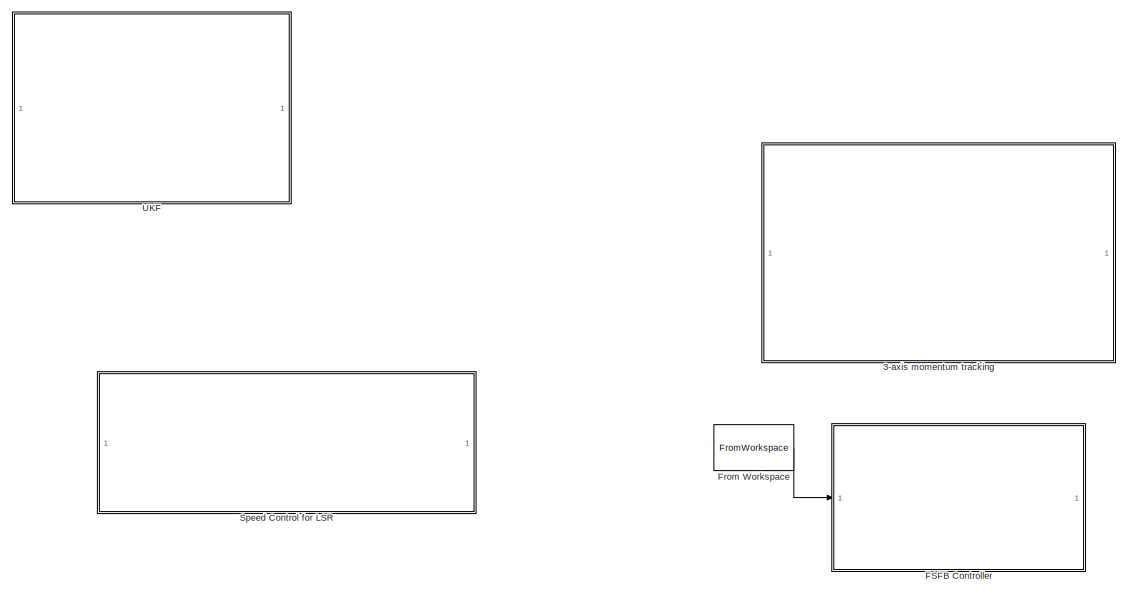
[diagram: root canvas - part 1/3, top right region]
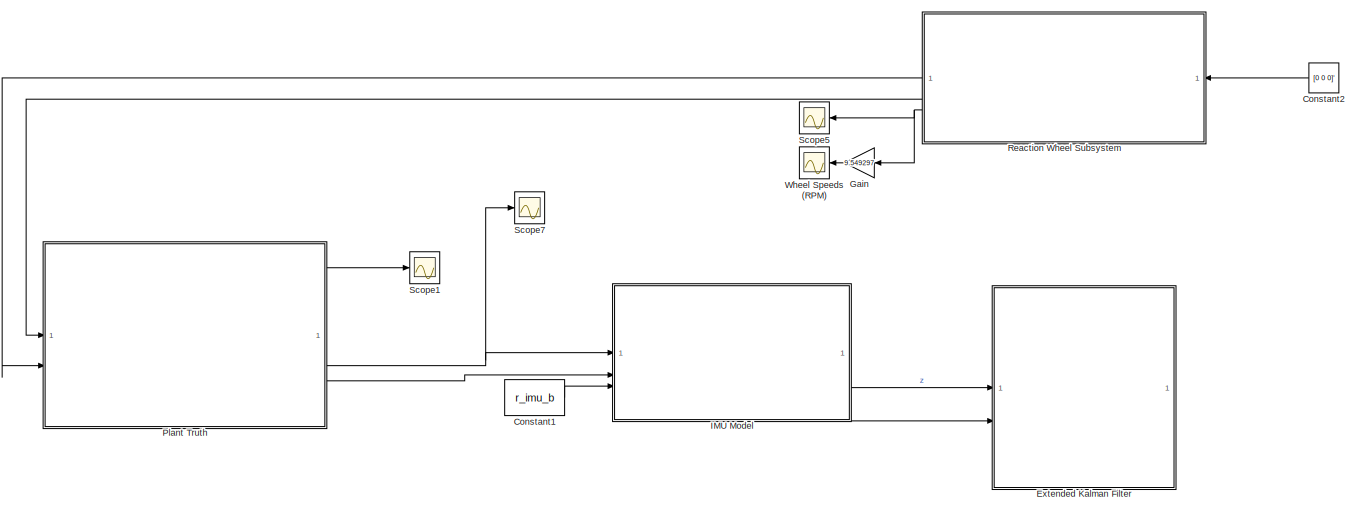
[diagram: root canvas - part 2/3, middle left region]
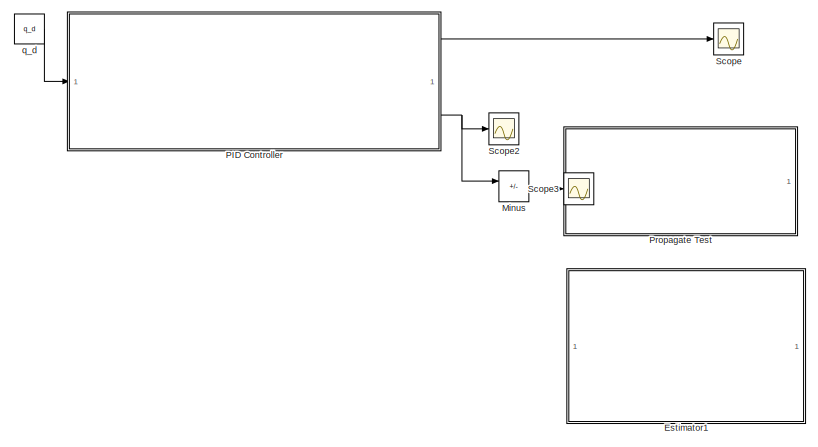
[diagram: root canvas - part 3/3, bottom right region]
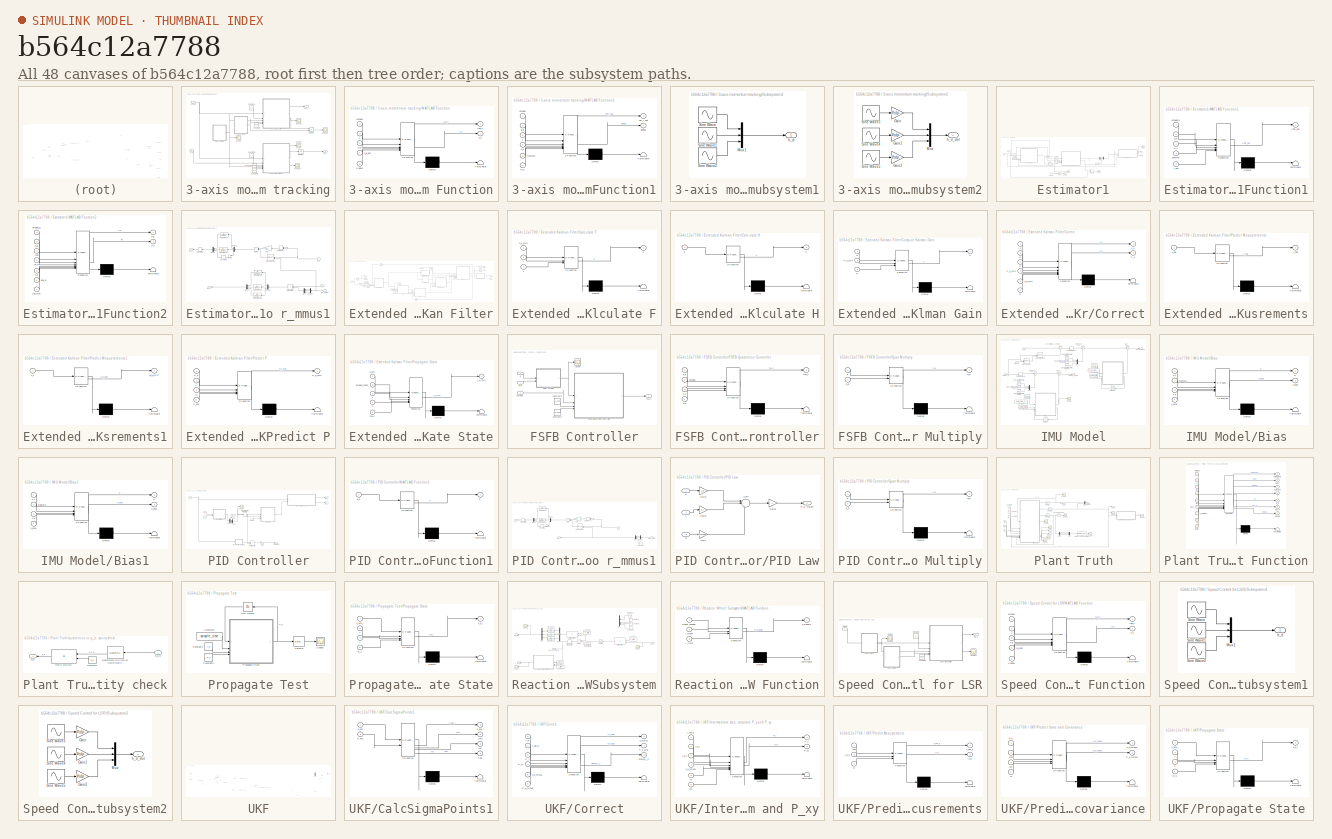
[diagram: thumbnail index - all 48 canvases of the model, root first then tree order]
MODEL slx_b564c12a7788
KIND model
CONFIG AbsTol = auto
CONFIG EnableMultiTasking = off
CONFIG FixedStep = auto
CONFIG InitFcn = rng('shuffle');
CONFIG MaxStep = auto
CONFIG MinStep = auto
CONFIG RelTol = 1e-3
CONFIG SampleTimeConstraint = Unconstrained
CONFIG SolverName = ode15s
CONFIG StartTime = 0.0
CONFIG StopTime = t_sim
BLOCK [SubSystem] 3-axis momentum tracking
  Commented = on
BLOCK [Constant] 3-axis momentum tracking/Constant
  Value = J_0
BLOCK [Constant] 3-axis momentum tracking/Constant2
  Value = J_0
BLOCK [Constant] 3-axis momentum tracking/Constant3
  Value = Kappa
BLOCK [Constant] 3-axis momentum tracking/Constant4
  Value = Gamma
BLOCK [Constant] 3-axis momentum tracking/Constant5
  Value = m_s
BLOCK [Integrator] 3-axis momentum tracking/Integrator
  InitialCondition = [0 0 0]'
BLOCK [SubSystem] 3-axis momentum tracking/MATLAB Function
  ErrorFcn = Stateflow.Translate.translate
  PermitHierarchicalResolution = ExplicitOnly
  SFBlockType = MATLAB Function
  TreatAsAtomicUnit = on
BLOCK [Demux] 3-axis momentum tracking/MATLAB Function/ Demux 
  Outputs = 1
BLOCK [S-Function] 3-axis momentum tracking/MATLAB Function/ SFunction 
  EnableBusSupport = on
  FunctionName = sf_sfun
  PortCounts = [5 3]
  SFcnIsStateOwnerBlock = off
  SFunctionDeploymentMode = off
  Tag = Stateflow S-Function 22
BLOCK [Terminator] 3-axis momentum tracking/MATLAB Function/ Terminator 
BLOCK [Inport] 3-axis momentum tracking/MATLAB Function/J
  Port = 2
BLOCK [Inport] 3-axis momentum tracking/MATLAB Function/Kappa
  Port = 5
BLOCK [Inport] 3-axis momentum tracking/MATLAB Function/h_d
  Port = 3
BLOCK [Inport] 3-axis momentum tracking/MATLAB Function/h_d_dot
  Port = 4
BLOCK [Outport] 3-axis momentum tracking/MATLAB Function/h_s
  Port = 2
BLOCK [Inport] 3-axis momentum tracking/MATLAB Function/omega
BLOCK [Outport] 3-axis momentum tracking/MATLAB Function/tau_c
BLOCK [SubSystem] 3-axis momentum tracking/MATLAB Function1
  ErrorFcn = Stateflow.Translate.translate
  PermitHierarchicalResolution = ExplicitOnly
  SFBlockType = MATLAB Function
  TreatAsAtomicUnit = on
BLOCK [Demux] 3-axis momentum tracking/MATLAB Function1/ Demux 
  Outputs = 1
BLOCK [S-Function] 3-axis momentum tracking/MATLAB Function1/ SFunction 
  EnableBusSupport = on
  FunctionName = sf_sfun
  PortCounts = [6 3]
  SFcnIsStateOwnerBlock = off
  SFunctionDeploymentMode = off
  Tag = Stateflow S-Function 23
BLOCK [Terminator] 3-axis momentum tracking/MATLAB Function1/ Terminator 
BLOCK [Inport] 3-axis momentum tracking/MATLAB Function1/Gamma
  Port = 5
BLOCK [Inport] 3-axis momentum tracking/MATLAB Function1/J
  Port = 3
BLOCK [Outport] 3-axis momentum tracking/MATLAB Function1/debug
  Port = 2
BLOCK [Outport] 3-axis momentum tracking/MATLAB Function1/del_r_dot
BLOCK [Inport] 3-axis momentum tracking/MATLAB Function1/g_b
  Port = 2
BLOCK [Inport] 3-axis momentum tracking/MATLAB Function1/h_d
  Port = 4
BLOCK [Inport] 3-axis momentum tracking/MATLAB Function1/m_s
  Port = 6
BLOCK [Inport] 3-axis momentum tracking/MATLAB Function1/omega
BLOCK [Scope] 3-axis momentum tracking/Scope
  Floating = off
  NumInputPorts = 1
  ScopeSpecificationString = Simulink.scopes.TimeScopeBlockCfg('CurrentConfiguration', extmgr.ConfigurationSet(extmgr.Configuration('Core','General UI',true),extmgr.Configuration('Core','Source UI',true),extmgr.Configuration('Sources','WiredSimulink',true,'DataLoggingVariableName','ScopeData1'),extmgr.Configuration('Visuals','Time Domain',true,'SerializedDisplays',{struct('MinYLimReal','-0.022','MaxYLimReal','0.022','YLabelRe...<+1533ch>
BLOCK [Scope] 3-axis momentum tracking/Scope1
  Floating = off
  NumInputPorts = 1
  ScopeSpecificationString = Simulink.scopes.TimeScopeBlockCfg('CurrentConfiguration', extmgr.ConfigurationSet(extmgr.Configuration('Core','General UI',true),extmgr.Configuration('Core','Source UI',true),extmgr.Configuration('Sources','WiredSimulink',true,'DataLoggingVariableName','ScopeData2'),extmgr.Configuration('Visuals','Time Domain',true,'SerializedDisplays',{struct('MinYLimReal','-0.094','MaxYLimReal','0.09878','YLabel...<+1632ch>
BLOCK [Scope] 3-axis momentum tracking/Scope10
  Floating = off
  NumInputPorts = 1
  ScopeSpecificationString = Simulink.scopes.TimeScopeBlockCfg('CurrentConfiguration', extmgr.ConfigurationSet(extmgr.Configuration('Core','General UI',true),extmgr.Configuration('Core','Source UI',true),extmgr.Configuration('Sources','WiredSimulink',true,'DataLoggingVariableName','ScopeData6'),extmgr.Configuration('Visuals','Time Domain',true,'SerializedDisplays',{struct('MinYLimReal','-2.31687','MaxYLimReal','3.20503','YLab...<+1594ch>
BLOCK [Scope] 3-axis momentum tracking/Scope4
  Floating = off
  NumInputPorts = 1
  ScopeSpecificationString = Simulink.scopes.TimeScopeBlockCfg('CurrentConfiguration', extmgr.ConfigurationSet(extmgr.Configuration('Core','General UI',true),extmgr.Configuration('Core','Source UI',true),extmgr.Configuration('Sources','WiredSimulink',true,'DataLoggingVariableName','ScopeData5'),extmgr.Configuration('Visuals','Time Domain',true,'SerializedDisplays',{struct('MinYLimReal','-0.02298','MaxYLimReal','0.02294','YLab...<+1598ch>
BLOCK [Scope] 3-axis momentum tracking/Scope9
  Floating = off
  NumInputPorts = 1
  ScopeSpecificationString = Simulink.scopes.TimeScopeBlockCfg('CurrentConfiguration', extmgr.ConfigurationSet(extmgr.Configuration('Core','General UI',true),extmgr.Configuration('Core','Source UI',true),extmgr.Configuration('Sources','WiredSimulink',true,'DataLoggingVariableName','ScopeData3'),extmgr.Configuration('Visuals','Time Domain',true,'SerializedDisplays',{struct('MinYLimReal','-0.00149','MaxYLimReal','0.00277','YLab...<+1652ch>
BLOCK [SubSystem] 3-axis momentum tracking/Subsystem1
BLOCK [Mux] 3-axis momentum tracking/Subsystem1/Mux1
  DisplayOption = bar
  Inputs = 3
BLOCK [Sin] 3-axis momentum tracking/Subsystem1/Sine Wave
  Amplitude = h_d_amp(1)
  Frequency = 1/h_d_period(1)
  Phase = h_d_phase(1)
  SampleTime = 0
BLOCK [Sin] 3-axis momentum tracking/Subsystem1/Sine Wave1
  Amplitude = h_d_amp(2)
  Frequency = 1/h_d_period(2)
  Phase = h_d_phase(2)
  SampleTime = 0
BLOCK [Sin] 3-axis momentum tracking/Subsystem1/Sine Wave2
  Amplitude = h_d_amp(3)
  Frequency = 1/h_d_period(3)
  Phase = h_d_phase(3)
  SampleTime = 0
BLOCK [Outport] 3-axis momentum tracking/Subsystem1/h_d
BLOCK [SubSystem] 3-axis momentum tracking/Subsystem2
BLOCK [Gain] 3-axis momentum tracking/Subsystem2/Gain
  Gain = 1/h_d_period(1)
BLOCK [Gain] 3-axis momentum tracking/Subsystem2/Gain1
  Gain = 1/h_d_period(2)
BLOCK [Gain] 3-axis momentum tracking/Subsystem2/Gain2
  Gain = 1/h_d_period(3)
BLOCK [Mux] 3-axis momentum tracking/Subsystem2/Mux
  DisplayOption = bar
  Inputs = 3
BLOCK [Sin] 3-axis momentum tracking/Subsystem2/Sine Wave3
  Amplitude = h_d_amp(1)
  Frequency = 1/h_d_period(1)
  Phase = h_d_phase(1)-(pi/2)
  SampleTime = 0
BLOCK [Sin] 3-axis momentum tracking/Subsystem2/Sine Wave4
  Amplitude = h_d_amp(2)
  Frequency = 1/h_d_period(2)
  Phase = h_d_phase(2)-(pi/2)
  SampleTime = 0
BLOCK [Sin] 3-axis momentum tracking/Subsystem2/Sine Wave5
  Amplitude = h_d_amp(3)
  Frequency = 1/h_d_period(3)
  Phase = h_d_phase(3)-(pi/2)
  SampleTime = 0
BLOCK [Outport] 3-axis momentum tracking/Subsystem2/h_d_dot
BLOCK [Sum] 3-axis momentum tracking/Subtract
  IconShape = rectangular
  Inputs = +-
BLOCK [Outport] 3-axis momentum tracking/del_r
  Port = 2
BLOCK [Inport] 3-axis momentum tracking/g_b
  Port = 2
BLOCK [Inport] 3-axis momentum tracking/omega
BLOCK [Outport] 3-axis momentum tracking/tau_c
BLOCK [Constant] Constant1
  Value = r_imu_b
BLOCK [Constant] Constant2
  NameLocation = top
  Value = [0 0 0]'
BLOCK [SubSystem] Estimator1
  Commented = on
BLOCK [Constant] Estimator1/Constant
  Value = m_s
BLOCK [Constant] Estimator1/Constant1
  Value = m_s
BLOCK [Constant] Estimator1/Constant2
  Value = k_p
BLOCK [Constant] Estimator1/Constant3
  Value = 0
BLOCK [Constant] Estimator1/Constant4
  Value = gamma
BLOCK [Constant] Estimator1/Constant5
  Value = r_0
BLOCK [Demux] Estimator1/Demux
  Outputs = 3
BLOCK [Integrator] Estimator1/Integrator
  InitialCondition = r_hat_0
BLOCK [SubSystem] Estimator1/MATLAB Function1
  ErrorFcn = Stateflow.Translate.translate
  PermitHierarchicalResolution = ExplicitOnly
  SFBlockType = MATLAB Function
  TreatAsAtomicUnit = on
BLOCK [Demux] Estimator1/MATLAB Function1/ Demux 
  Outputs = 1
BLOCK [S-Function] Estimator1/MATLAB Function1/ SFunction 
  EnableBusSupport = on
  FunctionName = sf_sfun
  PortCounts = [5 2]
  SFcnIsStateOwnerBlock = off
  SFunctionDeploymentMode = off
  Tag = Stateflow S-Function 27
BLOCK [Terminator] Estimator1/MATLAB Function1/ Terminator 
BLOCK [Inport] Estimator1/MATLAB Function1/g_b
  Port = 2
BLOCK [Inport] Estimator1/MATLAB Function1/gamma
  Port = 4
BLOCK [Inport] Estimator1/MATLAB Function1/m_s
  Port = 3
BLOCK [Inport] Estimator1/MATLAB Function1/omega_b
BLOCK [Inport] Estimator1/MATLAB Function1/r_hat
  Port = 5
BLOCK [Outport] Estimator1/MATLAB Function1/rhat_dot
BLOCK [SubSystem] Estimator1/MATLAB Function2
  ErrorFcn = Stateflow.Translate.translate
  PermitHierarchicalResolution = ExplicitOnly
  SFBlockType = MATLAB Function
  TreatAsAtomicUnit = on
BLOCK [Demux] Estimator1/MATLAB Function2/ Demux 
  Outputs = 1
BLOCK [S-Function] Estimator1/MATLAB Function2/ SFunction 
  EnableBusSupport = on
  FunctionName = sf_sfun
  PortCounts = [7 3]
  SFcnIsStateOwnerBlock = off
  SFunctionDeploymentMode = off
  Tag = Stateflow S-Function 28
BLOCK [Terminator] Estimator1/MATLAB Function2/ Terminator 
BLOCK [Outport] Estimator1/MATLAB Function2/Pp
  Port = 2
BLOCK [Inport] Estimator1/MATLAB Function2/eps_g
  Port = 6
BLOCK [Inport] Estimator1/MATLAB Function2/g_b
  Port = 2
BLOCK [Inport] Estimator1/MATLAB Function2/k_p
  Port = 5
BLOCK [Inport] Estimator1/MATLAB Function2/m_s
  Port = 4
BLOCK [Inport] Estimator1/MATLAB Function2/omega_b
BLOCK [Inport] Estimator1/MATLAB Function2/rhat
  Port = 3
BLOCK [Outport] Estimator1/MATLAB Function2/tau
BLOCK [Inport] Estimator1/MATLAB Function2/tau_max
  Port = 7
BLOCK [SubSystem] Estimator1/Map PID to r_mmus1
  NameLocation = top
BLOCK [Constant] Estimator1/Map PID to r_mmus1/Constant1
  NameLocation = top
  Value = 0
BLOCK [Reference] Estimator1/Map PID to r_mmus1/Cross Product  REF=matrix_library/Cross Product
  LibrarySourceBlock = simulink/Matrix\nOperations/Cross Product
  NameLocation = top
  SourceBlock = matrix_library/Cross Product
  SourceType = CrossProduct
BLOCK [Demux] Estimator1/Map PID to r_mmus1/Demux
  NameLocation = top
  Outputs = 3
BLOCK [Demux] Estimator1/Map PID to r_mmus1/Demux1
  NameLocation = top
  Outputs = 3
BLOCK [Demux] Estimator1/Map PID to r_mmus1/Demux2
  NameLocation = top
  Outputs = 3
BLOCK [Product] Estimator1/Map PID to r_mmus1/Divide
  Inputs = /*
  NameLocation = top
BLOCK [DotProduct] Estimator1/Map PID to r_mmus1/Dot Product
  NameLocation = top
  OutDataTypeStr = Inherit: Inherit via internal rule
BLOCK [Gain] Estimator1/Map PID to r_mmus1/Gain
  Gain = m_s
  NameLocation = top
BLOCK [Product] Estimator1/Map PID to r_mmus1/MatrixMultiply
  Multiplication = Matrix(*)
  NameLocation = top
BLOCK [Mux] Estimator1/Map PID to r_mmus1/Mux
  DisplayOption = bar
  Inputs = 3
  NameLocation = top
BLOCK [Mux] Estimator1/Map PID to r_mmus1/Mux1
  DisplayOption = bar
  Inputs = 3
  NameLocation = top
BLOCK [Mux] Estimator1/Map PID to r_mmus1/Mux2
  DisplayOption = bar
  Inputs = 3
  NameLocation = top
BLOCK [Inport] Estimator1/Map PID to r_mmus1/P
  Port = 3
BLOCK [Inport] Estimator1/Map PID to r_mmus1/PID_output
  Port = 2
BLOCK [RateLimiter] Estimator1/Map PID to r_mmus1/Rate Limiter1
  FallingSlewLimit = -0.030
  NameLocation = top
  RisingSlewLimit = 0.030
  SampleTimeMode = inherited
BLOCK [Terminator] Estimator1/Map PID to r_mmus1/Terminator
  NameLocation = top
BLOCK [TransferFcn] Estimator1/Map PID to r_mmus1/Transfer Fcn1
  Denominator = [1e-8 1]
  NameLocation = top
BLOCK [TransferFcn] Estimator1/Map PID to r_mmus1/Transfer Fcn2
  Denominator = [1e-8 1]
  NameLocation = top
BLOCK [TransferFcn] Estimator1/Map PID to r_mmus1/Transfer Fcn3
  Denominator = [1e-8 1]
  NameLocation = top
BLOCK [TransferFcn] Estimator1/Map PID to r_mmus1/Transfer Fcn4
  Denominator = [1e-8 1]
  NameLocation = top
BLOCK [TransferFcn] Estimator1/Map PID to r_mmus1/Transfer Fcn5
  Denominator = [1e-8 1]
  NameLocation = top
BLOCK [Outport] Estimator1/Map PID to r_mmus1/del_r
  NameLocation = top
BLOCK [Inport] Estimator1/Map PID to r_mmus1/g_b
BLOCK [Outport] Estimator1/Map PID to r_mmus1/tau_c
  Port = 2
BLOCK [Product] Estimator1/MatrixMultiply
  Multiplication = Matrix(*)
BLOCK [Mux] Estimator1/Mux
  DisplayOption = bar
  Inputs = 3
BLOCK [Scope] Estimator1/Scope
  Floating = off
  NumInputPorts = 1
  ScopeSpecificationString = Simulink.scopes.TimeScopeBlockCfg('CurrentConfiguration', extmgr.ConfigurationSet(extmgr.Configuration('Core','General UI',true),extmgr.Configuration('Core','Source UI',true),extmgr.Configuration('Sources','WiredSimulink',true,'DataLoggingVariableName','ScopeData2'),extmgr.Configuration('Visuals','Time Domain',true,'SerializedDisplays',{struct('MinYLimReal','-0.05746','MaxYLimReal','0.0171','YLabe...<+1562ch>
BLOCK [Scope] Estimator1/Scope1
  Floating = off
  NumInputPorts = 1
  ScopeSpecificationString = Simulink.scopes.TimeScopeBlockCfg('CurrentConfiguration', extmgr.ConfigurationSet(extmgr.Configuration('Core','General UI',true),extmgr.Configuration('Core','Source UI',true),extmgr.Configuration('Sources','WiredSimulink',true,'DataLoggingVariableName','omega_p','DataLogging',true,'DataLoggingSaveFormat','StructureWithTime'),extmgr.Configuration('Visuals','Time Domain',true,'SerializedDisplays',{s...<+1593ch>
BLOCK [Scope] Estimator1/Scope3
  Floating = off
  NumInputPorts = 1
  ScopeSpecificationString = Simulink.scopes.TimeScopeBlockCfg('CurrentConfiguration', extmgr.ConfigurationSet(extmgr.Configuration('Core','General UI',true),extmgr.Configuration('Core','Source UI',true),extmgr.Configuration('Sources','WiredSimulink',true,'DataLoggingVariableName','ScopeData3'),extmgr.Configuration('Visuals','Time Domain',true,'SerializedDisplays',{struct('MinYLimReal','-0.34306','MaxYLimReal','0.17024','YLab...<+1520ch>
BLOCK [Scope] Estimator1/Scope4
  Floating = off
  NumInputPorts = 1
  ScopeSpecificationString = Simulink.scopes.TimeScopeBlockCfg('CurrentConfiguration', extmgr.ConfigurationSet(extmgr.Configuration('Core','General UI',true),extmgr.Configuration('Core','Source UI',true),extmgr.Configuration('Sources','WiredSimulink',true,'DataLoggingVariableName','ScopeData4'),extmgr.Configuration('Visuals','Time Domain',true,'SerializedDisplays',{struct('MinYLimReal','-0.95584','MaxYLimReal','0.96653','YLab...<+1538ch>
BLOCK [Scope] Estimator1/Scope5
  Floating = off
  NumInputPorts = 1
  ScopeSpecificationString = Simulink.scopes.TimeScopeBlockCfg('CurrentConfiguration', extmgr.ConfigurationSet(extmgr.Configuration('Core','General UI',true),extmgr.Configuration('Core','Source UI',true),extmgr.Configuration('Sources','WiredSimulink',true,'DataLoggingVariableName','ScopeData5'),extmgr.Configuration('Visuals','Time Domain',true,'SerializedDisplays',{struct('MinYLimReal','-0.00097','MaxYLimReal','0.00149','YLab...<+1582ch>
BLOCK [Sum] Estimator1/Subtract
  IconShape = rectangular
  Inputs = +-
BLOCK [Outport] Estimator1/del_r
BLOCK [Inport] Estimator1/g_b
  Port = 2
BLOCK [Outport] Estimator1/tau_c
  Port = 2
BLOCK [Inport] Estimator1/w_b
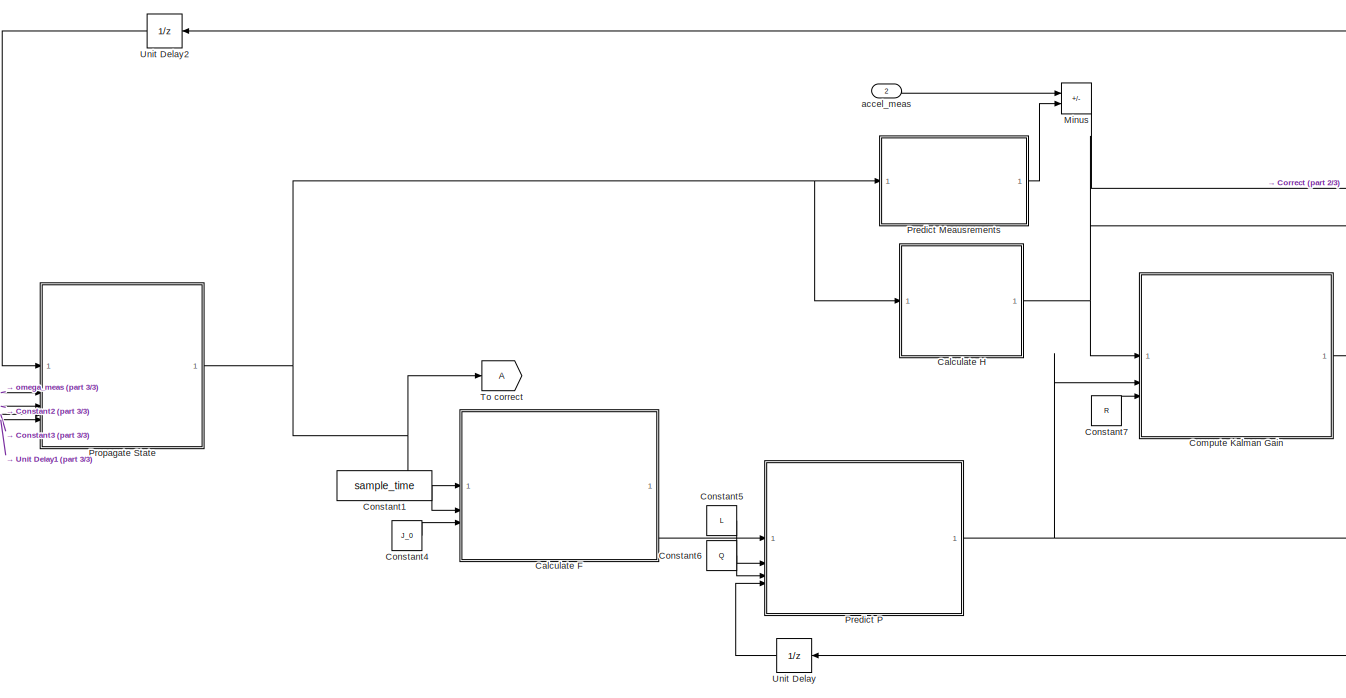
[diagram: Extended Kalman Filter - part 1/3, center side, full height]
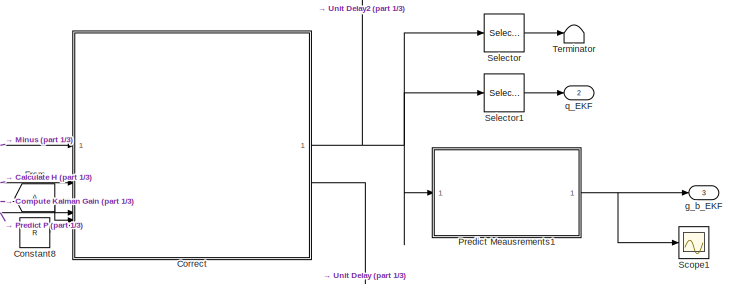
[diagram: Extended Kalman Filter - part 2/3, top right region]
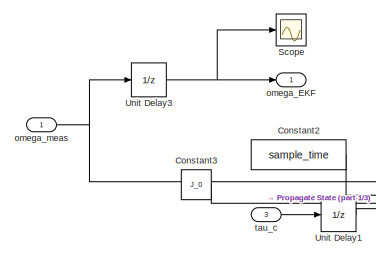
[diagram: Extended Kalman Filter - part 3/3, middle left region]
BLOCK [SubSystem] Extended Kalman Filter
BLOCK [SubSystem] Extended Kalman Filter/Calculate F
  ErrorFcn = Stateflow.Translate.translate
  PermitHierarchicalResolution = ExplicitOnly
  SFBlockType = MATLAB Function
  TreatAsAtomicUnit = on
BLOCK [Demux] Extended Kalman Filter/Calculate F/ Demux 
  Outputs = 1
BLOCK [S-Function] Extended Kalman Filter/Calculate F/ SFunction 
  EnableBusSupport = on
  FunctionName = sf_sfun
  PortCounts = [3 2]
  SFcnIsStateOwnerBlock = off
  SFunctionDeploymentMode = off
  Tag = Stateflow S-Function 7
BLOCK [Terminator] Extended Kalman Filter/Calculate F/ Terminator 
BLOCK [Outport] Extended Kalman Filter/Calculate F/F
BLOCK [Inport] Extended Kalman Filter/Calculate F/J
  Port = 3
BLOCK [Inport] Extended Kalman Filter/Calculate F/T
  Port = 2
BLOCK [Inport] Extended Kalman Filter/Calculate F/x_k_min
BLOCK [SubSystem] Extended Kalman Filter/Calculate H
  ErrorFcn = Stateflow.Translate.translate
  PermitHierarchicalResolution = ExplicitOnly
  SFBlockType = MATLAB Function
  TreatAsAtomicUnit = on
BLOCK [Demux] Extended Kalman Filter/Calculate H/ Demux 
  Outputs = 1
BLOCK [S-Function] Extended Kalman Filter/Calculate H/ SFunction 
  EnableBusSupport = on
  FunctionName = sf_sfun
  PortCounts = [1 2]
  SFcnIsStateOwnerBlock = off
  SFunctionDeploymentMode = off
  Tag = Stateflow S-Function 11
BLOCK [Terminator] Extended Kalman Filter/Calculate H/ Terminator 
BLOCK [Outport] Extended Kalman Filter/Calculate H/H
BLOCK [Inport] Extended Kalman Filter/Calculate H/x
BLOCK [SubSystem] Extended Kalman Filter/Compute Kalman Gain
  ErrorFcn = Stateflow.Translate.translate
  PermitHierarchicalResolution = ExplicitOnly
  SFBlockType = MATLAB Function
  TreatAsAtomicUnit = on
BLOCK [Demux] Extended Kalman Filter/Compute Kalman Gain/ Demux 
  Outputs = 1
BLOCK [S-Function] Extended Kalman Filter/Compute Kalman Gain/ SFunction 
  EnableBusSupport = on
  FunctionName = sf_sfun
  PortCounts = [3 2]
  SFcnIsStateOwnerBlock = off
  SFunctionDeploymentMode = off
  Tag = Stateflow S-Function 18
BLOCK [Terminator] Extended Kalman Filter/Compute Kalman Gain/ Terminator 
BLOCK [Inport] Extended Kalman Filter/Compute Kalman Gain/H
BLOCK [Outport] Extended Kalman Filter/Compute Kalman Gain/K
BLOCK [Inport] Extended Kalman Filter/Compute Kalman Gain/P_k_min
  Port = 2
BLOCK [Inport] Extended Kalman Filter/Compute Kalman Gain/R
  Port = 3
BLOCK [Constant] Extended Kalman Filter/Constant1
  Value = sample_time
BLOCK [Constant] Extended Kalman Filter/Constant2
  Value = sample_time
BLOCK [Constant] Extended Kalman Filter/Constant3
  Value = J_0
BLOCK [Constant] Extended Kalman Filter/Constant4
  Value = J_0
BLOCK [Constant] Extended Kalman Filter/Constant5
  Value = L
BLOCK [Constant] Extended Kalman Filter/Constant6
  Value = Q
BLOCK [Constant] Extended Kalman Filter/Constant7
  Value = R
BLOCK [Constant] Extended Kalman Filter/Constant8
  Value = R
BLOCK [SubSystem] Extended Kalman Filter/Correct
  ErrorFcn = Stateflow.Translate.translate
  PermitHierarchicalResolution = ExplicitOnly
  SFBlockType = MATLAB Function
  TreatAsAtomicUnit = on
BLOCK [Demux] Extended Kalman Filter/Correct/ Demux 
  Outputs = 1
BLOCK [S-Function] Extended Kalman Filter/Correct/ SFunction 
  EnableBusSupport = on
  FunctionName = sf_sfun
  PortCounts = [6 3]
  SFcnIsStateOwnerBlock = off
  SFunctionDeploymentMode = off
  Tag = Stateflow S-Function 19
BLOCK [Terminator] Extended Kalman Filter/Correct/ Terminator 
BLOCK [Inport] Extended Kalman Filter/Correct/H
  Port = 2
BLOCK [Inport] Extended Kalman Filter/Correct/K
  Port = 3
BLOCK [Outport] Extended Kalman Filter/Correct/P_k
  Port = 2
BLOCK [Inport] Extended Kalman Filter/Correct/P_k_min
  Port = 4
BLOCK [Inport] Extended Kalman Filter/Correct/R
  Port = 6
BLOCK [Inport] Extended Kalman Filter/Correct/r_k
BLOCK [Outport] Extended Kalman Filter/Correct/x_k
BLOCK [Inport] Extended Kalman Filter/Correct/x_k_min
  Port = 5
BLOCK [From] Extended Kalman Filter/From
BLOCK [Sum] Extended Kalman Filter/Minus
  IconShape = rectangular
  Inputs = +-
BLOCK [SubSystem] Extended Kalman Filter/Predict Meausrements
  ErrorFcn = Stateflow.Translate.translate
  PermitHierarchicalResolution = ExplicitOnly
  SFBlockType = MATLAB Function
  TreatAsAtomicUnit = on
BLOCK [Demux] Extended Kalman Filter/Predict Meausrements/ Demux 
  Outputs = 1
BLOCK [S-Function] Extended Kalman Filter/Predict Meausrements/ SFunction 
  EnableBusSupport = on
  FunctionName = sf_sfun
  PortCounts = [1 2]
  SFcnIsStateOwnerBlock = off
  SFunctionDeploymentMode = off
  Tag = Stateflow S-Function 9
BLOCK [Terminator] Extended Kalman Filter/Predict Meausrements/ Terminator 
BLOCK [Inport] Extended Kalman Filter/Predict Meausrements/x_hat
BLOCK [Outport] Extended Kalman Filter/Predict Meausrements/y_hat
BLOCK [SubSystem] Extended Kalman Filter/Predict Meausrements1
  ErrorFcn = Stateflow.Translate.translate
  PermitHierarchicalResolution = ExplicitOnly
  SFBlockType = MATLAB Function
  TreatAsAtomicUnit = on
BLOCK [Demux] Extended Kalman Filter/Predict Meausrements1/ Demux 
  Outputs = 1
BLOCK [S-Function] Extended Kalman Filter/Predict Meausrements1/ SFunction 
  EnableBusSupport = on
  FunctionName = sf_sfun
  PortCounts = [1 2]
  SFcnIsStateOwnerBlock = off
  SFunctionDeploymentMode = off
  Tag = Stateflow S-Function 20
BLOCK [Terminator] Extended Kalman Filter/Predict Meausrements1/ Terminator 
BLOCK [Outport] Extended Kalman Filter/Predict Meausrements1/g_b_EKF
BLOCK [Inport] Extended Kalman Filter/Predict Meausrements1/x_k
BLOCK [SubSystem] Extended Kalman Filter/Predict P
  ErrorFcn = Stateflow.Translate.translate
  PermitHierarchicalResolution = ExplicitOnly
  SFBlockType = MATLAB Function
  TreatAsAtomicUnit = on
BLOCK [Demux] Extended Kalman Filter/Predict P/ Demux 
  Outputs = 1
BLOCK [S-Function] Extended Kalman Filter/Predict P/ SFunction 
  EnableBusSupport = on
  FunctionName = sf_sfun
  PortCounts = [4 2]
  SFcnIsStateOwnerBlock = off
  SFunctionDeploymentMode = off
  Tag = Stateflow S-Function 8
BLOCK [Terminator] Extended Kalman Filter/Predict P/ Terminator 
BLOCK [Inport] Extended Kalman Filter/Predict P/F_k
BLOCK [Inport] Extended Kalman Filter/Predict P/L
  Port = 2
BLOCK [Outport] Extended Kalman Filter/Predict P/P_k_min
BLOCK [Inport] Extended Kalman Filter/Predict P/P_kn1
  Port = 4
BLOCK [Inport] Extended Kalman Filter/Predict P/Q
  Port = 3
BLOCK [SubSystem] Extended Kalman Filter/Propagate State
  ErrorFcn = Stateflow.Translate.translate
  PermitHierarchicalResolution = ExplicitOnly
  SFBlockType = MATLAB Function
  TreatAsAtomicUnit = on
BLOCK [Demux] Extended Kalman Filter/Propagate State/ Demux 
  Outputs = 1
BLOCK [S-Function] Extended Kalman Filter/Propagate State/ SFunction 
  EnableBusSupport = on
  FunctionName = sf_sfun
  PortCounts = [5 2]
  SFcnIsStateOwnerBlock = off
  SFunctionDeploymentMode = off
  Tag = Stateflow S-Function 6
BLOCK [Terminator] Extended Kalman Filter/Propagate State/ Terminator 
BLOCK [Inport] Extended Kalman Filter/Propagate State/J
  Port = 4
BLOCK [Inport] Extended Kalman Filter/Propagate State/T
  Port = 3
BLOCK [Inport] Extended Kalman Filter/Propagate State/omega_meas
  Port = 2
BLOCK [Inport] Extended Kalman Filter/Propagate State/tau_c
  Port = 5
BLOCK [Outport] Extended Kalman Filter/Propagate State/x_k_min
BLOCK [Inport] Extended Kalman Filter/Propagate State/x_kn1
BLOCK [Scope] Extended Kalman Filter/Scope
  Floating = off
  NumInputPorts = 1
  ScopeSpecificationString = Simulink.scopes.TimeScopeBlockCfg('CurrentConfiguration', extmgr.ConfigurationSet(extmgr.Configuration('Core','General UI',true),extmgr.Configuration('Core','Source UI',true),extmgr.Configuration('Sources','WiredSimulink',true,'DataLoggingVariableName','omega_EKF','DataLogging',true,'DataLoggingSaveFormat','StructureWithTime'),extmgr.Configuration('Visuals','Time Domain',true,'SerializedDisplays',...<+1610ch>
BLOCK [Scope] Extended Kalman Filter/Scope1
  Floating = off
  NumInputPorts = 1
  ScopeSpecificationString = Simulink.scopes.TimeScopeBlockCfg('CurrentConfiguration', extmgr.ConfigurationSet(extmgr.Configuration('Core','General UI',true),extmgr.Configuration('Core','Source UI',true),extmgr.Configuration('Sources','WiredSimulink',true,'DataLoggingVariableName','g_b_EKF','DataLogging',true,'DataLoggingSaveFormat','StructureWithTime'),extmgr.Configuration('Visuals','Time Domain',true,'SerializedDisplays',{s...<+1585ch>
BLOCK [Selector] Extended Kalman Filter/Selector
  IndexOptions = Index vector (dialog)
  Indices = [1 2 3]
  InputPortWidth = 7
  OutputSizes = 1
BLOCK [Selector] Extended Kalman Filter/Selector1
  IndexOptions = Index vector (dialog)
  Indices = [4 5 6 7]
  InputPortWidth = 7
  OutputSizes = 1
BLOCK [Terminator] Extended Kalman Filter/Terminator
BLOCK [Goto] Extended Kalman Filter/To correct
BLOCK [UnitDelay] Extended Kalman Filter/Unit Delay
  HasFrameUpgradeWarning = on
  InitialCondition = P_0
  NameLocation = top
  SampleTime = sample_time
BLOCK [UnitDelay] Extended Kalman Filter/Unit Delay1
  HasFrameUpgradeWarning = on
  InitialCondition = [0 0 0]'
  SampleTime = -1
BLOCK [UnitDelay] Extended Kalman Filter/Unit Delay2
  HasFrameUpgradeWarning = on
  InitialCondition = x_0
  NameLocation = top
  SampleTime = sample_time
BLOCK [UnitDelay] Extended Kalman Filter/Unit Delay3
  HasFrameUpgradeWarning = on
  InitialCondition = [0 0 0]'
  SampleTime = -1
BLOCK [Inport] Extended Kalman Filter/accel_meas
  Port = 2
BLOCK [Outport] Extended Kalman Filter/g_b_EKF
  Port = 3
BLOCK [Outport] Extended Kalman Filter/omega_EKF
BLOCK [Inport] Extended Kalman Filter/omega_meas
BLOCK [Outport] Extended Kalman Filter/q_EKF
  Port = 2
BLOCK [Inport] Extended Kalman Filter/tau_c
  Port = 3
BLOCK [SubSystem] FSFB Controller
  Commented = on
BLOCK [Constant] FSFB Controller/Constant5
  Value = Kp_FSFB
BLOCK [Constant] FSFB Controller/Constant6
  Value = Kd_FSFB
BLOCK [SubSystem] FSFB Controller/FSFB Quaternion Controller
  ErrorFcn = Stateflow.Translate.translate
  PermitHierarchicalResolution = ExplicitOnly
  SFBlockType = MATLAB Function
  TreatAsAtomicUnit = on
BLOCK [Demux] FSFB Controller/FSFB Quaternion Controller/ Demux 
  Outputs = 1
BLOCK [S-Function] FSFB Controller/FSFB Quaternion Controller/ SFunction 
  EnableBusSupport = on
  FunctionName = sf_sfun
  PortCounts = [4 2]
  SFcnIsStateOwnerBlock = off
  SFunctionDeploymentMode = off
  Tag = Stateflow S-Function 14
BLOCK [Terminator] FSFB Controller/FSFB Quaternion Controller/ Terminator 
BLOCK [Inport] FSFB Controller/FSFB Quaternion Controller/Kd
  Port = 4
BLOCK [Inport] FSFB Controller/FSFB Quaternion Controller/Kp
  Port = 3
BLOCK [Inport] FSFB Controller/FSFB Quaternion Controller/omega
  Port = 2
BLOCK [Inport] FSFB Controller/FSFB Quaternion Controller/q_e
BLOCK [Outport] FSFB Controller/FSFB Quaternion Controller/tau_c
BLOCK [SubSystem] FSFB Controller/Quat Multiply
  ErrorFcn = Stateflow.Translate.translate
  PermitHierarchicalResolution = ExplicitOnly
  SFBlockType = MATLAB Function
  TreatAsAtomicUnit = on
BLOCK [Demux] FSFB Controller/Quat Multiply/ Demux 
  Outputs = 1
BLOCK [S-Function] FSFB Controller/Quat Multiply/ SFunction 
  EnableBusSupport = on
  FunctionName = sf_sfun
  PortCounts = [2 2]
  SFcnIsStateOwnerBlock = off
  SFunctionDeploymentMode = off
  Tag = Stateflow S-Function 21
BLOCK [Terminator] FSFB Controller/Quat Multiply/ Terminator 
BLOCK [Inport] FSFB Controller/Quat Multiply/q
BLOCK [Inport] FSFB Controller/Quat Multiply/q_d
  Port = 2
BLOCK [Outport] FSFB Controller/Quat Multiply/q_e
BLOCK [Scope] FSFB Controller/Scope
  Floating = off
  NumInputPorts = 1
  ScopeSpecificationString = Simulink.scopes.TimeScopeBlockCfg('CurrentConfiguration', extmgr.ConfigurationSet(extmgr.Configuration('Core','General UI',true),extmgr.Configuration('Core','Source UI',true),extmgr.Configuration('Sources','WiredSimulink',true,'DataLoggingVariableName','ScopeData4'),extmgr.Configuration('Visuals','Time Domain',true,'SerializedDisplays',{struct('MinYLimReal','-0.23209','MaxYLimReal','1.1369','YLabe...<+1579ch>
BLOCK [Inport] FSFB Controller/omega
  Port = 2
BLOCK [Inport] FSFB Controller/q
  Port = 3
BLOCK [Inport] FSFB Controller/q_d
BLOCK [Outport] FSFB Controller/tau_c
BLOCK [FromWorkspace] From Workspace
  Commented = on
  VariableName = tar_quats
BLOCK [Gain] Gain
  Gain = 9.549297
  NameLocation = top
BLOCK [SubSystem] IMU Model
BLOCK [Reference] IMU Model/Band-Limited White Noise  REF=simulink/Sources/Band-Limited
White Noise
  SourceBlock = simulink/Sources/Band-Limited\nWhite Noise
  SourceType = Band-Limited White Noise.
BLOCK [Reference] IMU Model/Band-Limited White Noise1  REF=simulink/Sources/Band-Limited
White Noise
  SourceBlock = simulink/Sources/Band-Limited\nWhite Noise
  SourceType = Band-Limited White Noise.
BLOCK [Reference] IMU Model/Band-Limited White Noise2  REF=simulink/Sources/Band-Limited
White Noise
  SourceBlock = simulink/Sources/Band-Limited\nWhite Noise
  SourceType = Band-Limited White Noise.
BLOCK [Reference] IMU Model/Band-Limited White Noise3  REF=simulink/Sources/Band-Limited
White Noise
  SourceBlock = simulink/Sources/Band-Limited\nWhite Noise
  SourceType = Band-Limited White Noise.
BLOCK [Reference] IMU Model/Band-Limited White Noise4  REF=simulink/Sources/Band-Limited
White Noise
  SourceBlock = simulink/Sources/Band-Limited\nWhite Noise
  SourceType = Band-Limited White Noise.
BLOCK [Reference] IMU Model/Band-Limited White Noise5  REF=simulink/Sources/Band-Limited
White Noise
  SourceBlock = simulink/Sources/Band-Limited\nWhite Noise
  SourceType = Band-Limited White Noise.
BLOCK [SubSystem] IMU Model/Bias
  ErrorFcn = Stateflow.Translate.translate
  PermitHierarchicalResolution = ExplicitOnly
  SFBlockType = MATLAB Function
  TreatAsAtomicUnit = on
BLOCK [Demux] IMU Model/Bias/ Demux 
  Outputs = 1
BLOCK [S-Function] IMU Model/Bias/ SFunction 
  EnableBusSupport = on
  FunctionName = sf_sfun
  PortCounts = [4 3]
  SFcnIsStateOwnerBlock = off
  SFunctionDeploymentMode = off
  Tag = Stateflow S-Function 4
BLOCK [Terminator] IMU Model/Bias/ Terminator 
BLOCK [Inport] IMU Model/Bias/Tc
BLOCK [Inport] IMU Model/Bias/Ts
  Port = 3
BLOCK [Outport] IMU Model/Bias/b
BLOCK [Inport] IMU Model/Bias/sigma_x
  Port = 2
BLOCK [Outport] IMU Model/Bias/x_next
  Port = 2
BLOCK [Inport] IMU Model/Bias/x_prev
  Port = 4
BLOCK [SubSystem] IMU Model/Bias1
  ErrorFcn = Stateflow.Translate.translate
  PermitHierarchicalResolution = ExplicitOnly
  SFBlockType = MATLAB Function
  TreatAsAtomicUnit = on
BLOCK [Demux] IMU Model/Bias1/ Demux 
  Outputs = 1
BLOCK [S-Function] IMU Model/Bias1/ SFunction 
  EnableBusSupport = on
  FunctionName = sf_sfun
  PortCounts = [4 3]
  SFcnIsStateOwnerBlock = off
  SFunctionDeploymentMode = off
  Tag = Stateflow S-Function 5
BLOCK [Terminator] IMU Model/Bias1/ Terminator 
BLOCK [Inport] IMU Model/Bias1/Tc
BLOCK [Inport] IMU Model/Bias1/Ts
  Port = 3
BLOCK [Outport] IMU Model/Bias1/b
BLOCK [Inport] IMU Model/Bias1/sigma_x
  Port = 2
BLOCK [Outport] IMU Model/Bias1/x_next
  Port = 2
BLOCK [Inport] IMU Model/Bias1/x_prev
  Port = 4
BLOCK [Constant] IMU Model/Constant
  Value = sample_time
BLOCK [Constant] IMU Model/Constant1
  Value = 5000
BLOCK [Constant] IMU Model/Constant2
  Value = gyro_bias_instability
BLOCK [Constant] IMU Model/Constant3
  Value = sample_time
BLOCK [Constant] IMU Model/Constant4
  Value = 2000
BLOCK [Constant] IMU Model/Constant5
  Value = accel_bias_instability
BLOCK [Reference] IMU Model/Cross Product  REF=matrix_library/Cross Product
  LibrarySourceBlock = simulink/Matrix\nOperations/Cross Product
  SourceBlock = matrix_library/Cross Product
  SourceType = CrossProduct
BLOCK [Reference] IMU Model/Cross Product1  REF=matrix_library/Cross Product
  LibrarySourceBlock = simulink/Matrix\nOperations/Cross Product
  SourceBlock = matrix_library/Cross Product
  SourceType = CrossProduct
BLOCK [Mux] IMU Model/Mux
  DisplayOption = bar
  Inputs = 3
BLOCK [Mux] IMU Model/Mux1
  DisplayOption = bar
  Inputs = 3
BLOCK [Scope] IMU Model/Scope
  Floating = off
  NumInputPorts = 1
  ScopeSpecificationString = Simulink.scopes.TimeScopeBlockCfg('CurrentConfiguration', extmgr.ConfigurationSet(extmgr.Configuration('Core','General UI',true),extmgr.Configuration('Core','Source UI',true),extmgr.Configuration('Sources','WiredSimulink',true,'DataLoggingVariableName','ScopeData3'),extmgr.Configuration('Visuals','Time Domain',true,'SerializedDisplays',{struct('MinYLimReal','-0.000046','MaxYLimReal','-0.000002','Y...<+1570ch>
BLOCK [Sum] IMU Model/Sum
  Inputs = |++
BLOCK [Sum] IMU Model/Sum1
  Inputs = |++
BLOCK [Sum] IMU Model/Sum2
  Inputs = |++
BLOCK [Sum] IMU Model/Sum3
  Inputs = |++
BLOCK [Sum] IMU Model/Sum4
  Inputs = |++
BLOCK [UnitDelay] IMU Model/Unit Delay
  HasFrameUpgradeWarning = on
  InitialCondition = gyro_bias_instability*randn(3,1)
  NameLocation = top
  SampleTime = sample_time
BLOCK [UnitDelay] IMU Model/Unit Delay1
  HasFrameUpgradeWarning = on
  InitialCondition = accel_bias_instability*randn(3,1)
  NameLocation = top
  SampleTime = sample_time
BLOCK [ZeroOrderHold] IMU Model/Zero-Order Hold
  SampleTime = sample_time
BLOCK [ZeroOrderHold] IMU Model/Zero-Order Hold1
  SampleTime = sample_time
BLOCK [Outport] IMU Model/accel_meas
  Port = 2
BLOCK [Inport] IMU Model/g_b
  Port = 2
BLOCK [Inport] IMU Model/omega_b
BLOCK [Outport] IMU Model/omega_meas
BLOCK [Inport] IMU Model/r_imu_b
  Port = 3
BLOCK [Sum] Minus
  Commented = on
  IconShape = rectangular
  Inputs = +-
BLOCK [SubSystem] PID Controller
  Commented = on
BLOCK [Demux] PID Controller/Demux3
BLOCK [DiscreteIntegrator] PID Controller/Discrete-Time Integrator
  ICPrevOutput = DiscIntNeverNeededParam
  ICPrevScaledInput = DiscIntNeverNeededParam
  InitialCondition = [0,0,0]'
  InitialConditionSetting = Auto
  SampleTime = sample_time
BLOCK [Gain] PID Controller/Gain
  Gain = K_I
BLOCK [SubSystem] PID Controller/MATLAB Function1
  ErrorFcn = Stateflow.Translate.translate
  PermitHierarchicalResolution = ExplicitOnly
  SFBlockType = MATLAB Function
  TreatAsAtomicUnit = on
BLOCK [Demux] PID Controller/MATLAB Function1/ Demux 
  Outputs = 1
BLOCK [S-Function] PID Controller/MATLAB Function1/ SFunction 
  EnableBusSupport = on
  FunctionName = sf_sfun
  PortCounts = [1 2]
  SFcnIsStateOwnerBlock = off
  SFunctionDeploymentMode = off
  Tag = Stateflow S-Function 26
BLOCK [Terminator] PID Controller/MATLAB Function1/ Terminator 
BLOCK [Outport] PID Controller/MATLAB Function1/P
BLOCK [Inport] PID Controller/MATLAB Function1/g_b
BLOCK [SubSystem] PID Controller/Map PID to r_mmus1
  NameLocation = top
BLOCK [Constant] PID Controller/Map PID to r_mmus1/Constant
  NameLocation = top
  Value = 0
BLOCK [Constant] PID Controller/Map PID to r_mmus1/Constant1
  NameLocation = top
  Value = 0
BLOCK [Reference] PID Controller/Map PID to r_mmus1/Cross Product  REF=matrix_library/Cross Product
  LibrarySourceBlock = simulink/Matrix\nOperations/Cross Product
  NameLocation = top
  SourceBlock = matrix_library/Cross Product
  SourceType = CrossProduct
BLOCK [Demux] PID Controller/Map PID to r_mmus1/Demux
  NameLocation = top
  Outputs = 3
BLOCK [Demux] PID Controller/Map PID to r_mmus1/Demux2
  NameLocation = top
  Outputs = 3
BLOCK [Product] PID Controller/Map PID to r_mmus1/Divide
  Inputs = /*
  NameLocation = top
BLOCK [DotProduct] PID Controller/Map PID to r_mmus1/Dot Product
  NameLocation = top
  OutDataTypeStr = Inherit: Inherit via internal rule
BLOCK [Gain] PID Controller/Map PID to r_mmus1/Gain
  Gain = m_s
  NameLocation = top
BLOCK [Mux] PID Controller/Map PID to r_mmus1/Mux
  DisplayOption = bar
  Inputs = 3
  NameLocation = top
BLOCK [Mux] PID Controller/Map PID to r_mmus1/Mux2
  DisplayOption = bar
  Inputs = 3
  NameLocation = top
BLOCK [Inport] PID Controller/Map PID to r_mmus1/PID_output
  Port = 2
BLOCK [RateLimiter] PID Controller/Map PID to r_mmus1/Rate Limiter1
  FallingSlewLimit = -0.030
  NameLocation = top
  RisingSlewLimit = 0.030
  SampleTimeMode = inherited
BLOCK [Terminator] PID Controller/Map PID to r_mmus1/Terminator
  NameLocation = top
BLOCK [TransferFcn] PID Controller/Map PID to r_mmus1/Transfer Fcn4
  Denominator = [1e-8 1]
  NameLocation = top
BLOCK [TransferFcn] PID Controller/Map PID to r_mmus1/Transfer Fcn5
  Denominator = [1e-8 1]
  NameLocation = top
BLOCK [Outport] PID Controller/Map PID to r_mmus1/del_r
  NameLocation = top
BLOCK [Inport] PID Controller/Map PID to r_mmus1/g_b
BLOCK [Outport] PID Controller/Map PID to r_mmus1/tau_c
  Port = 2
BLOCK [Product] PID Controller/MatrixMultiply
  Multiplication = Matrix(*)
BLOCK [Mux] PID Controller/Mux3
  DisplayOption = bar
  Inputs = 3
BLOCK [SubSystem] PID Controller/PID Law
BLOCK [Inport] PID Controller/PID Law/D
  Port = 3
BLOCK [Gain] PID Controller/PID Law/Gain
  Gain = K_omega
BLOCK [Gain] PID Controller/PID Law/Gain1
  Gain = K_I
BLOCK [Gain] PID Controller/PID Law/Gain2
  Gain = K_q
BLOCK [Gain] PID Controller/PID Law/Gain3
  Gain = -1
BLOCK [Inport] PID Controller/PID Law/I
  Port = 2
BLOCK [Inport] PID Controller/PID Law/P
BLOCK [Outport] PID Controller/PID Law/PID Output
BLOCK [Sum] PID Controller/PID Law/Sum
  Inputs = |+++
BLOCK [Outport] PID Controller/Proj. Int. Action
  Port = 3
BLOCK [SubSystem] PID Controller/Quat Multiply
  ErrorFcn = Stateflow.Translate.translate
  PermitHierarchicalResolution = ExplicitOnly
  SFBlockType = MATLAB Function
  TreatAsAtomicUnit = on
BLOCK [Demux] PID Controller/Quat Multiply/ Demux 
  Outputs = 1
BLOCK [S-Function] PID Controller/Quat Multiply/ SFunction 
  EnableBusSupport = on
  FunctionName = sf_sfun
  PortCounts = [2 2]
  SFcnIsStateOwnerBlock = off
  SFunctionDeploymentMode = off
  Tag = Stateflow S-Function 3
BLOCK [Terminator] PID Controller/Quat Multiply/ Terminator 
BLOCK [Inport] PID Controller/Quat Multiply/q
BLOCK [Inport] PID Controller/Quat Multiply/q_d
  Port = 2
BLOCK [Outport] PID Controller/Quat Multiply/q_e
BLOCK [Scope] PID Controller/Scope6
  Floating = off
  NumInputPorts = 1
  ScopeSpecificationString = Simulink.scopes.TimeScopeBlockCfg('CurrentConfiguration', extmgr.ConfigurationSet(extmgr.Configuration('Core','General UI',true),extmgr.Configuration('Core','Source UI',true),extmgr.Configuration('Sources','WiredSimulink',true,'DataLoggingVariableName','ScopeData2'),extmgr.Configuration('Visuals','Time Domain',true,'SerializedDisplays',{struct('MinYLimReal','-0.81616','MaxYLimReal','0.54233','YLab...<+1544ch>
BLOCK [Terminator] PID Controller/Terminator
BLOCK [Outport] PID Controller/del_r
BLOCK [Inport] PID Controller/g_b
  Port = 4
BLOCK [Inport] PID Controller/omega
  Port = 2
BLOCK [Inport] PID Controller/q
  Port = 3
BLOCK [Inport] PID Controller/q_d
BLOCK [Outport] PID Controller/tau_c
  Port = 2
BLOCK [SubSystem] Plant Truth
BLOCK [Constant] Plant Truth/Constant
  Value = m_s
BLOCK [Constant] Plant Truth/Constant1
  Value = J_0
BLOCK [Constant] Plant Truth/Constant2
  Value = r_0
BLOCK [Demux] Plant Truth/Demux
  Outputs = 3
BLOCK [Integrator] Plant Truth/Integrator
  InitialCondition = omega_0
BLOCK [Integrator] Plant Truth/Integrator1
  InitialCondition = q_0
  NameLocation = top
BLOCK [Integrator] Plant Truth/Integrator2
  InitialCondition = EA_0
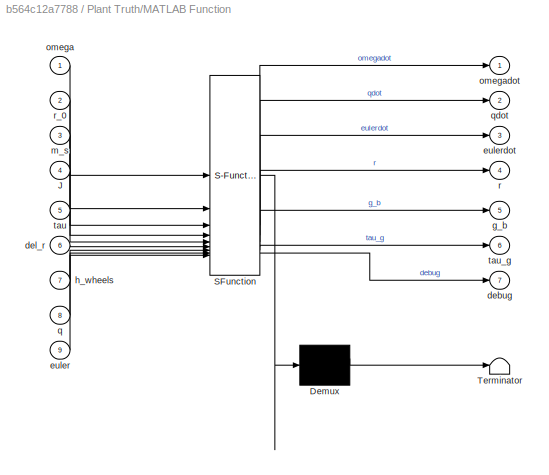
BLOCK [SubSystem] Plant Truth/MATLAB Function
  ErrorFcn = Stateflow.Translate.translate
  PermitHierarchicalResolution = ExplicitOnly
  SFBlockType = MATLAB Function
  TreatAsAtomicUnit = on
BLOCK [Demux] Plant Truth/MATLAB Function/ Demux 
  Outputs = 1
BLOCK [S-Function] Plant Truth/MATLAB Function/ SFunction 
  EnableBusSupport = on
  FunctionName = sf_sfun
  PortCounts = [9 8]
  SFcnIsStateOwnerBlock = off
  SFunctionDeploymentMode = off
  Tag = Stateflow S-Function 1
BLOCK [Terminator] Plant Truth/MATLAB Function/ Terminator 
BLOCK [Inport] Plant Truth/MATLAB Function/J
  Port = 4
BLOCK [Outport] Plant Truth/MATLAB Function/debug
  Port = 7
BLOCK [Inport] Plant Truth/MATLAB Function/del_r
  Port = 6
BLOCK [Inport] Plant Truth/MATLAB Function/euler
  Port = 9
BLOCK [Outport] Plant Truth/MATLAB Function/eulerdot
  Port = 3
BLOCK [Outport] Plant Truth/MATLAB Function/g_b
  Port = 5
BLOCK [Inport] Plant Truth/MATLAB Function/h_wheels
  Port = 7
BLOCK [Inport] Plant Truth/MATLAB Function/m_s
  Port = 3
BLOCK [Inport] Plant Truth/MATLAB Function/omega
BLOCK [Outport] Plant Truth/MATLAB Function/omegadot
BLOCK [Inport] Plant Truth/MATLAB Function/q
  Port = 8
BLOCK [Outport] Plant Truth/MATLAB Function/qdot
  Port = 2
BLOCK [Outport] Plant Truth/MATLAB Function/r
  Port = 4
BLOCK [Inport] Plant Truth/MATLAB Function/r_0
  Port = 2
BLOCK [Inport] Plant Truth/MATLAB Function/tau
  Port = 5
BLOCK [Outport] Plant Truth/MATLAB Function/tau_g
  Port = 6
BLOCK [Mux] Plant Truth/Mux
  DisplayOption = bar
  Inputs = 3
BLOCK [Mux] Plant Truth/Mux1
  DisplayOption = bar
  Inputs = 2
BLOCK [Reference] Plant Truth/Radians to Degrees  REF=simulink_extras/Transformations/Radians
to Degrees
  SourceBlock = simulink_extras/Transformations/Radians\nto Degrees
  SourceType = RadiansToDegrees
BLOCK [Reference] Plant Truth/Rotation Angles to Quaternions  REF=sharedtransform/Rotation Angles to Quaternions
  AttributesFormatString = Rotation Order: %<rotationOrder>
  LibrarySourceBlock = aerolibtransform2/Rotation Angles to Quaternions
  SourceBlock = sharedtransform/Rotation Angles to Quaternions
  SourceType = Ang2Quat
BLOCK [Scope] Plant Truth/Scope
  Floating = off
  NumInputPorts = 1
  ScopeSpecificationString = Simulink.scopes.TimeScopeBlockCfg('CurrentConfiguration', extmgr.ConfigurationSet(extmgr.Configuration('Core','General UI',true),extmgr.Configuration('Core','Source UI',true),extmgr.Configuration('Sources','WiredSimulink',true,'DataLogging',true,'DataLoggingVariableName','q_b_N','DataLoggingSaveFormat','StructureWithTime'),extmgr.Configuration('Visuals','Time Domain',true,'SerializedDisplays',{str...<+1573ch>
BLOCK [Scope] Plant Truth/Scope1
  Floating = off
  NumInputPorts = 1
  ScopeSpecificationString = Simulink.scopes.TimeScopeBlockCfg('CurrentConfiguration', extmgr.ConfigurationSet(extmgr.Configuration('Core','General UI',true),extmgr.Configuration('Core','Source UI',true),extmgr.Configuration('Sources','WiredSimulink',true,'DataLoggingVariableName','omega_b','DataLogging',true,'DataLoggingSaveFormat','StructureWithTime'),extmgr.Configuration('Visuals','Time Domain',true,'SerializedDisplays',{s...<+1563ch>
BLOCK [Scope] Plant Truth/Scope2
  Floating = off
  NumInputPorts = 1
  ScopeSpecificationString = Simulink.scopes.TimeScopeBlockCfg('CurrentConfiguration', extmgr.ConfigurationSet(extmgr.Configuration('Core','General UI',true),extmgr.Configuration('Core','Source UI',true),extmgr.Configuration('Sources','WiredSimulink',true,'DataLoggingVariableName','EA_degs','DataLogging',true,'DataLoggingSaveFormat','StructureWithTime'),extmgr.Configuration('Visuals','Time Domain',true,'SerializedDisplays',{s...<+1627ch>
BLOCK [Scope] Plant Truth/Scope3
  Floating = off
  NumInputPorts = 1
  ScopeSpecificationString = Simulink.scopes.TimeScopeBlockCfg('CurrentConfiguration', extmgr.ConfigurationSet(extmgr.Configuration('Core','General UI',true),extmgr.Configuration('Core','Source UI',true),extmgr.Configuration('Sources','WiredSimulink',true,'DataLoggingVariableName','r_b','DataLogging',true,'DataLoggingSaveFormat','StructureWithTime'),extmgr.Configuration('Visuals','Time Domain',true,'SerializedDisplays',{struc...<+1709ch>
BLOCK [Scope] Plant Truth/Scope4
  Floating = off
  NumInputPorts = 1
  ScopeSpecificationString = Simulink.scopes.TimeScopeBlockCfg('CurrentConfiguration', extmgr.ConfigurationSet(extmgr.Configuration('Core','General UI',true),extmgr.Configuration('Core','Source UI',true),extmgr.Configuration('Sources','WiredSimulink',true,'DataLoggingVariableName','ScopeData7'),extmgr.Configuration('Visuals','Time Domain',true,'SerializedDisplays',{struct('MinYLimReal','-0.2357','MaxYLimReal','1.1305','YLabel...<+1621ch>
BLOCK [Scope] Plant Truth/Scope5
  Floating = off
  NumInputPorts = 1
  ScopeSpecificationString = Simulink.scopes.TimeScopeBlockCfg('CurrentConfiguration', extmgr.ConfigurationSet(extmgr.Configuration('Core','General UI',true),extmgr.Configuration('Core','Source UI',true),extmgr.Configuration('Sources','WiredSimulink',true,'DataLoggingVariableName','tau_g_0','DataLogging',true,'DataLoggingSaveFormat','StructureWithTime'),extmgr.Configuration('Visuals','Time Domain',true,'SerializedDisplays',{s...<+1669ch>
BLOCK [Scope] Plant Truth/Scope6
  Floating = off
  NumInputPorts = 1
  ScopeSpecificationString = Simulink.scopes.TimeScopeBlockCfg('CurrentConfiguration', extmgr.ConfigurationSet(extmgr.Configuration('Core','General UI',true),extmgr.Configuration('Core','Source UI',true),extmgr.Configuration('Sources','WiredSimulink',true,'DataLoggingVariableName','ScopeData1'),extmgr.Configuration('Visuals','Time Domain',true,'SerializedDisplays',{struct('MinYLimReal','-11.45133','MaxYLimReal','4.96209','YLa...<+1528ch>
BLOCK [Scope] Plant Truth/Scope7
  Floating = off
  NumInputPorts = 1
  ScopeSpecificationString = Simulink.scopes.TimeScopeBlockCfg('CurrentConfiguration', extmgr.ConfigurationSet(extmgr.Configuration('Core','General UI',true),extmgr.Configuration('Core','Source UI',true),extmgr.Configuration('Sources','WiredSimulink',true,'DataLoggingVariableName','g_b','DataLogging',true,'DataLoggingSaveFormat','StructureWithTime'),extmgr.Configuration('Visuals','Time Domain',true,'SerializedDisplays',{struc...<+1605ch>
BLOCK [Scope] Plant Truth/Scope8
  Floating = off
  NumInputPorts = 1
  ScopeSpecificationString = Simulink.scopes.TimeScopeBlockCfg('CurrentConfiguration', extmgr.ConfigurationSet(extmgr.Configuration('Core','General UI',true),extmgr.Configuration('Core','Source UI',true),extmgr.Configuration('Sources','WiredSimulink',true,'DataLoggingVariableName','ScopeData1'),extmgr.Configuration('Visuals','Time Domain',true,'SerializedDisplays',{struct('MinYLimReal','-0.00159','MaxYLimReal','0.00032','YLab...<+1550ch>
BLOCK [Terminator] Plant Truth/Terminator
BLOCK [Inport] Plant Truth/del_r
  Port = 3
BLOCK [Outport] Plant Truth/g_b
  Port = 3
BLOCK [Inport] Plant Truth/h_wheels
BLOCK [Outport] Plant Truth/q_b_N
BLOCK [SubSystem] Plant Truth/quaternion to g_b, sanity check
  NameLocation = top
BLOCK [Constant] Plant Truth/quaternion to g_b, sanity check/Constant3
  NameLocation = top
  Value = g_N
BLOCK [Product] Plant Truth/quaternion to g_b, sanity check/Matrix Multiply
  Multiplication = Matrix(*)
  NameLocation = top
BLOCK [Reference] Plant Truth/quaternion to g_b, sanity check/Quaternions to Direction Cosine Matrix  REF=sharedtransform/Quaternions to 
Direction Cosine Matrix
  NameLocation = top
  SourceBlock = sharedtransform/Quaternions to \nDirection Cosine Matrix
  SourceType = Quaternion2DCM
BLOCK [Outport] Plant Truth/quaternion to g_b, sanity check/g_b
  NameLocation = top
BLOCK [Inport] Plant Truth/quaternion to g_b, sanity check/q_b_N
  NameLocation = top
BLOCK [Inport] Plant Truth/tau
  Port = 2
BLOCK [Outport] Plant Truth/tau_g_0
  Port = 4
BLOCK [Outport] Plant Truth/w_b_N
  Port = 2
BLOCK [SubSystem] Propagate Test
  Commented = on
BLOCK [Constant] Propagate Test/Constant2
  Value = sample_time
BLOCK [Constant] Propagate Test/Constant3
  Value = J_0
BLOCK [Constant] Propagate Test/Constant5
  Value = m_s
BLOCK [SubSystem] Propagate Test/Propagate State
  ErrorFcn = Stateflow.Translate.translate
  PermitHierarchicalResolution = ExplicitOnly
  SFBlockType = MATLAB Function
  TreatAsAtomicUnit = on
BLOCK [Demux] Propagate Test/Propagate State/ Demux 
  Outputs = 1
BLOCK [S-Function] Propagate Test/Propagate State/ SFunction 
  EnableBusSupport = on
  FunctionName = sf_sfun
  PortCounts = [4 2]
  SFcnIsStateOwnerBlock = off
  SFunctionDeploymentMode = off
  Tag = Stateflow S-Function 2
BLOCK [Terminator] Propagate Test/Propagate State/ Terminator 
BLOCK [Inport] Propagate Test/Propagate State/J
  Port = 3
BLOCK [Inport] Propagate Test/Propagate State/T
  Port = 2
BLOCK [Inport] Propagate Test/Propagate State/m_s
  Port = 4
BLOCK [Outport] Propagate Test/Propagate State/x_k_i
BLOCK [Inport] Propagate Test/Propagate State/x_kn1_i
BLOCK [Scope] Propagate Test/Scope3
  Floating = off
  NumInputPorts = 1
  ScopeSpecificationString = Simulink.scopes.TimeScopeBlockCfg('CurrentConfiguration', extmgr.ConfigurationSet(extmgr.Configuration('Core','General UI',true),extmgr.Configuration('Core','Source UI',true),extmgr.Configuration('Sources','WiredSimulink',true,'DataLoggingVariableName','ScopeData6'),extmgr.Configuration('Visuals','Time Domain',true,'SerializedDisplays',{struct('MinYLimReal','-1.21947','MaxYLimReal','1.23819','YLab...<+1527ch>
BLOCK [Selector] Propagate Test/Selector
  IndexOptions = Index vector (dialog)
  Indices = [4 5 6 7]
  InputPortWidth = 8
  OutputSizes = 1
BLOCK [UnitDelay] Propagate Test/Unit Delay2
  HasFrameUpgradeWarning = on
  InitialCondition = [omega_0; q_0; r_0(3)];
  NameLocation = top
  SampleTime = sample_time
BLOCK [SubSystem] Reaction Wheel Subsystem
BLOCK [Constant] Reaction Wheel Subsystem/Constant
  Commented = on
  NameLocation = top
  Value = 0
BLOCK [Constant] Reaction Wheel Subsystem/Constant1
  NameLocation = top
  Value = I_wheel
BLOCK [Constant] Reaction Wheel Subsystem/Constant2
  NameLocation = top
  Value = -A_pinv
BLOCK [Constant] Reaction Wheel Subsystem/Constant3
  NameLocation = top
  Value = I_wheel
BLOCK [Constant] Reaction Wheel Subsystem/Constant4
  NameLocation = top
  Value = -A_truth
BLOCK [Constant] Reaction Wheel Subsystem/Constant5
  NameLocation = top
  Value = A_truth
BLOCK [Constant] Reaction Wheel Subsystem/Constant6
  Commented = on
  NameLocation = right
  Value = 0
BLOCK [Constant] Reaction Wheel Subsystem/Constant7
  Commented = on
  NameLocation = right
  Value = 0
BLOCK [Demux] Reaction Wheel Subsystem/Demux
  NameLocation = top
  Outputs = 3
BLOCK [DiscreteIntegrator] Reaction Wheel Subsystem/Discrete-Time Integrator
  ICPrevOutput = DiscIntNeverNeededParam
  ICPrevScaledInput = DiscIntNeverNeededParam
  InitialConditionSetting = Auto
  NameLocation = top
  SampleTime = sample_time
BLOCK [Product] Reaction Wheel Subsystem/Divide
  Inputs = */
  NameLocation = top
BLOCK [SubSystem] Reaction Wheel Subsystem/MATLAB Function
  ErrorFcn = Stateflow.Translate.translate
  NameLocation = top
  PermitHierarchicalResolution = ExplicitOnly
  SFBlockType = MATLAB Function
  TreatAsAtomicUnit = on
BLOCK [Demux] Reaction Wheel Subsystem/MATLAB Function/ Demux 
  Outputs = 1
BLOCK [S-Function] Reaction Wheel Subsystem/MATLAB Function/ SFunction 
  EnableBusSupport = on
  FunctionName = sf_sfun
  PortCounts = [3 2]
  SFcnIsStateOwnerBlock = off
  SFunctionDeploymentMode = off
  Tag = Stateflow S-Function 24
BLOCK [Terminator] Reaction Wheel Subsystem/MATLAB Function/ Terminator 
BLOCK [Inport] Reaction Wheel Subsystem/MATLAB Function/A_truth
  Port = 3
BLOCK [Inport] Reaction Wheel Subsystem/MATLAB Function/I_wheel
  Port = 2
BLOCK [Outport] Reaction Wheel Subsystem/MATLAB Function/h_wheels
BLOCK [Inport] Reaction Wheel Subsystem/MATLAB Function/wheel_speeds
BLOCK [Product] Reaction Wheel Subsystem/MatrixMultiply
  Multiplication = Matrix(*)
  NameLocation = top
BLOCK [Product] Reaction Wheel Subsystem/MatrixMultiply1
  Multiplication = Matrix(*)
  NameLocation = top
BLOCK [Mux] Reaction Wheel Subsystem/Mux
  DisplayOption = bar
  Inputs = 3
  NameLocation = top
BLOCK [Mux] Reaction Wheel Subsystem/Mux1
  Commented = on
  DisplayOption = bar
  NameLocation = top
BLOCK [Saturate] Reaction Wheel Subsystem/Saturation
  LowerLimit = -0.1
  NameLocation = top
  UpperLimit = 0.1
BLOCK [Scope] Reaction Wheel Subsystem/Scope
  Floating = off
  NameLocation = top
  NumInputPorts = 1
  ScopeSpecificationString = Simulink.scopes.TimeScopeBlockCfg('CurrentConfiguration', extmgr.ConfigurationSet(extmgr.Configuration('Core','General UI',true),extmgr.Configuration('Core','Source UI',true),extmgr.Configuration('Sources','WiredSimulink',true,'DataLoggingVariableName','tau_c','DataLogging',true,'DataLoggingSaveFormat','StructureWithTime'),extmgr.Configuration('Visuals','Time Domain',true,'SerializedDisplays',{str...<+1573ch>
BLOCK [Scope] Reaction Wheel Subsystem/Scope1
  Floating = off
  NameLocation = top
  NumInputPorts = 1
  ScopeSpecificationString = Simulink.scopes.TimeScopeBlockCfg('CurrentConfiguration', extmgr.ConfigurationSet(extmgr.Configuration('Core','General UI',true),extmgr.Configuration('Core','Source UI',true),extmgr.Configuration('Sources','WiredSimulink',true,'DataLoggingVariableName','h_wheels','DataLogging',true,'DataLoggingSaveFormat','StructureWithTime'),extmgr.Configuration('Visuals','Time Domain',true,'SerializedDisplays',{...<+1634ch>
BLOCK [Scope] Reaction Wheel Subsystem/Scope2
  Floating = off
  NameLocation = top
  NumInputPorts = 1
  ScopeSpecificationString = Simulink.scopes.TimeScopeBlockCfg('CurrentConfiguration', extmgr.ConfigurationSet(extmgr.Configuration('Core','General UI',true),extmgr.Configuration('Core','Source UI',true),extmgr.Configuration('Sources','WiredSimulink',true,'DataLoggingVariableName','tau_truth','DataLogging',true,'DataLoggingSaveFormat','StructureWithTime'),extmgr.Configuration('Visuals','Time Domain',true,'SerializedDisplays',...<+1552ch>
BLOCK [Sin] Reaction Wheel Subsystem/Sine Wave1
  Amplitude = 0.0125
  Commented = on
  Frequency = 2*pi/70
  NameLocation = top
  SampleTime = 0
BLOCK [TransferFcn] Reaction Wheel Subsystem/Transfer Fcn
  Denominator = [tau_delay 1]
  NameLocation = top
BLOCK [TransferFcn] Reaction Wheel Subsystem/Transfer Fcn1
  Denominator = [tau_delay 1]
  NameLocation = top
BLOCK [TransferFcn] Reaction Wheel Subsystem/Transfer Fcn2
  Denominator = [tau_delay 1]
  NameLocation = top
BLOCK [Outport] Reaction Wheel Subsystem/h_wheels
  NameLocation = top
  Port = 2
BLOCK [Inport] Reaction Wheel Subsystem/tau_c
BLOCK [Outport] Reaction Wheel Subsystem/tau_truth
BLOCK [Outport] Reaction Wheel Subsystem/wheel_speeds
  Port = 3
BLOCK [Scope] Scope
  Commented = on
  Floating = off
  NumInputPorts = 1
  ScopeSpecificationString = Simulink.scopes.TimeScopeBlockCfg('CurrentConfiguration', extmgr.ConfigurationSet(extmgr.Configuration('Core','General UI',true),extmgr.Configuration('Core','Source UI',true),extmgr.Configuration('Sources','WiredSimulink',true,'DataLoggingVariableName','del_r','DataLogging',true,'DataLoggingSaveFormat','StructureWithTime'),extmgr.Configuration('Visuals','Time Domain',true,'SerializedDisplays',{str...<+1630ch>
BLOCK [Scope] Scope1
  Floating = off
  NumInputPorts = 1
  ScopeSpecificationString = Simulink.scopes.TimeScopeBlockCfg('CurrentConfiguration', extmgr.ConfigurationSet(extmgr.Configuration('Core','General UI',true),extmgr.Configuration('Core','Source UI',true),extmgr.Configuration('Sources','WiredSimulink',true,'DataLoggingVariableName','ScopeData1'),extmgr.Configuration('Visuals','Time Domain',true,'SerializedDisplays',{struct('MinYLimReal','-0.24712','MaxYLimReal','1.13177','YLab...<+1599ch>
BLOCK [Scope] Scope2
  Commented = on
  Floating = off
  NumInputPorts = 1
  ScopeSpecificationString = Simulink.scopes.TimeScopeBlockCfg('CurrentConfiguration', extmgr.ConfigurationSet(extmgr.Configuration('Core','General UI',true),extmgr.Configuration('Core','Source UI',true),extmgr.Configuration('Sources','WiredSimulink',true,'DataLoggingVariableName','ScopeData5'),extmgr.Configuration('Visuals','Time Domain',true,'SerializedDisplays',{struct('MinYLimReal','-0.93742','MaxYLimReal','0.72723','YLab...<+1589ch>
BLOCK [Scope] Scope3
  Commented = on
  Floating = off
  NumInputPorts = 1
  ScopeSpecificationString = Simulink.scopes.TimeScopeBlockCfg('CurrentConfiguration', extmgr.ConfigurationSet(extmgr.Configuration('Core','General UI',true),extmgr.Configuration('Core','Source UI',true),extmgr.Configuration('Sources','WiredSimulink',true,'DataLoggingVariableName','proj_int_action','DataLogging',true,'DataLoggingSaveFormat','StructureWithTime'),extmgr.Configuration('Visuals','Time Domain',true,'SerializedDisp...<+1611ch>
BLOCK [Scope] Scope5
  Floating = off
  NameLocation = top
  NumInputPorts = 1
  ScopeSpecificationString = Simulink.scopes.TimeScopeBlockCfg('CurrentConfiguration', extmgr.ConfigurationSet(extmgr.Configuration('Core','General UI',true),extmgr.Configuration('Core','Source UI',true),extmgr.Configuration('Sources','WiredSimulink',true,'DataLoggingVariableName','ScopeData6'),extmgr.Configuration('Visuals','Time Domain',true,'SerializedDisplays',{struct('MinYLimReal','-1.00000','MaxYLimReal','1.00000','YLab...<+1611ch>
BLOCK [Scope] Scope7
  Floating = off
  NumInputPorts = 1
  ScopeSpecificationString = Simulink.scopes.TimeScopeBlockCfg('CurrentConfiguration', extmgr.ConfigurationSet(extmgr.Configuration('Core','General UI',true),extmgr.Configuration('Core','Source UI',true),extmgr.Configuration('Sources','WiredSimulink',true,'DataLoggingVariableName','ScopeData9'),extmgr.Configuration('Visuals','Time Domain',true,'SerializedDisplays',{struct('MinYLimReal','-0.23337','MaxYLimReal','0.15282','YLab...<+1563ch>
BLOCK [SubSystem] Speed Control for LSR
  Commented = on
BLOCK [Constant] Speed Control for LSR/Constant
  Value = J_0
BLOCK [Constant] Speed Control for LSR/Constant3
  Value = Kappa
BLOCK [SubSystem] Speed Control for LSR/MATLAB Function
  ErrorFcn = Stateflow.Translate.translate
  PermitHierarchicalResolution = ExplicitOnly
  SFBlockType = MATLAB Function
  TreatAsAtomicUnit = on
BLOCK [Demux] Speed Control for LSR/MATLAB Function/ Demux 
  Outputs = 1
BLOCK [S-Function] Speed Control for LSR/MATLAB Function/ SFunction 
  EnableBusSupport = on
  FunctionName = sf_sfun
  PortCounts = [5 3]
  SFcnIsStateOwnerBlock = off
  SFunctionDeploymentMode = off
  Tag = Stateflow S-Function 25
BLOCK [Terminator] Speed Control for LSR/MATLAB Function/ Terminator 
BLOCK [Inport] Speed Control for LSR/MATLAB Function/J
  Port = 2
BLOCK [Inport] Speed Control for LSR/MATLAB Function/Kappa
  Port = 5
BLOCK [Inport] Speed Control for LSR/MATLAB Function/h_d
  Port = 3
BLOCK [Inport] Speed Control for LSR/MATLAB Function/h_d_dot
  Port = 4
BLOCK [Outport] Speed Control for LSR/MATLAB Function/h_s
  Port = 2
BLOCK [Inport] Speed Control for LSR/MATLAB Function/omega
BLOCK [Outport] Speed Control for LSR/MATLAB Function/tau_c
BLOCK [Scope] Speed Control for LSR/Scope
  Floating = off
  NumInputPorts = 1
  ScopeSpecificationString = Simulink.scopes.TimeScopeBlockCfg('CurrentConfiguration', extmgr.ConfigurationSet(extmgr.Configuration('Core','General UI',true),extmgr.Configuration('Core','Source UI',true),extmgr.Configuration('Sources','WiredSimulink',true,'DataLoggingVariableName','ScopeData2'),extmgr.Configuration('Visuals','Time Domain',true,'SerializedDisplays',{struct('MinYLimReal','-0.022','MaxYLimReal','0.022','YLabelRe...<+1520ch>
BLOCK [Scope] Speed Control for LSR/Scope4
  Floating = off
  NumInputPorts = 1
  ScopeSpecificationString = Simulink.scopes.TimeScopeBlockCfg('CurrentConfiguration', extmgr.ConfigurationSet(extmgr.Configuration('Core','General UI',true),extmgr.Configuration('Core','Source UI',true),extmgr.Configuration('Sources','WiredSimulink',true,'DataLoggingVariableName','ScopeData5'),extmgr.Configuration('Visuals','Time Domain',true,'SerializedDisplays',{struct('MinYLimReal','-0.02377','MaxYLimReal','0.02359','YLab...<+1598ch>
BLOCK [SubSystem] Speed Control for LSR/Subsystem1
BLOCK [Mux] Speed Control for LSR/Subsystem1/Mux1
  DisplayOption = bar
  Inputs = 3
BLOCK [Sin] Speed Control for LSR/Subsystem1/Sine Wave
  Amplitude = h_d_amp_LSR(1)
  Frequency = 1/h_d_period_LSR(1)
  Phase = h_d_phase_LSR(1)
  SampleTime = 0
BLOCK [Sin] Speed Control for LSR/Subsystem1/Sine Wave1
  Amplitude = h_d_amp_LSR(2)
  Frequency = 1/h_d_period_LSR(2)
  Phase = h_d_phase_LSR(2)
  SampleTime = 0
BLOCK [Sin] Speed Control for LSR/Subsystem1/Sine Wave2
  Amplitude = h_d_amp_LSR(3)
  Frequency = 1/h_d_period_LSR(3)
  Phase = h_d_phase_LSR(3)
  SampleTime = 0
BLOCK [Outport] Speed Control for LSR/Subsystem1/h_d
BLOCK [SubSystem] Speed Control for LSR/Subsystem2
BLOCK [Gain] Speed Control for LSR/Subsystem2/Gain
  Gain = 1/h_d_period(1)
BLOCK [Gain] Speed Control for LSR/Subsystem2/Gain1
  Gain = 1/h_d_period(2)
BLOCK [Gain] Speed Control for LSR/Subsystem2/Gain2
  Gain = 1/h_d_period(3)
BLOCK [Mux] Speed Control for LSR/Subsystem2/Mux
  DisplayOption = bar
  Inputs = 3
BLOCK [Sin] Speed Control for LSR/Subsystem2/Sine Wave3
  Amplitude = h_d_amp_LSR(1)
  Frequency = 1/h_d_period_LSR(1)
  Phase = h_d_phase_LSR(1)-(pi/2)
  SampleTime = 0
BLOCK [Sin] Speed Control for LSR/Subsystem2/Sine Wave4
  Amplitude = h_d_amp_LSR(2)
  Frequency = 1/h_d_period_LSR(2)
  Phase = h_d_phase_LSR(2)-(pi/2)
  SampleTime = 0
BLOCK [Sin] Speed Control for LSR/Subsystem2/Sine Wave5
  Amplitude = h_d_amp_LSR(3)
  Frequency = 1/h_d_period_LSR(3)
  Phase = h_d_phase_LSR(3)-(pi/2)
  SampleTime = 0
BLOCK [Outport] Speed Control for LSR/Subsystem2/h_d_dot
BLOCK [Inport] Speed Control for LSR/omega
BLOCK [Outport] Speed Control for LSR/tau_c
BLOCK [SubSystem] UKF
  Commented = on
  TreatAsAtomicUnit = on
BLOCK [Scope] UKF/Body Rates
  Floating = off
  NumInputPorts = 3
  ScopeSpecificationString = Simulink.scopes.TimeScopeBlockCfg('CurrentConfiguration', extmgr.ConfigurationSet(extmgr.Configuration('Core','General UI',true),extmgr.Configuration('Core','Source UI',true),extmgr.Configuration('Sources','WiredSimulink',true,'DataLoggingVariableName','ScopeData3'),extmgr.Configuration('Visuals','Time Domain',true,'SerializedDisplays',{struct('MinYLimReal','-0.02786','MaxYLimReal','0.0703','YLabe...<+1505ch>
BLOCK [SubSystem] UKF/CalcSigmaPoints1
  ErrorFcn = Stateflow.Translate.translate
  PermitHierarchicalResolution = ExplicitOnly
  SFBlockType = MATLAB Function
  TreatAsAtomicUnit = on
BLOCK [Demux] UKF/CalcSigmaPoints1/ Demux 
  Outputs = 1
BLOCK [S-Function] UKF/CalcSigmaPoints1/ SFunction 
  EnableBusSupport = on
  FunctionName = sf_sfun
  PortCounts = [2 5]
  SFcnIsStateOwnerBlock = off
  SFunctionDeploymentMode = off
  Tag = Stateflow S-Function 10
BLOCK [Terminator] UKF/CalcSigmaPoints1/ Terminator 
BLOCK [Inport] UKF/CalcSigmaPoints1/P_kn1
  Port = 2
BLOCK [Outport] UKF/CalcSigmaPoints1/Wc
  Port = 3
BLOCK [Outport] UKF/CalcSigmaPoints1/Wm
  Port = 2
BLOCK [Outport] UKF/CalcSigmaPoints1/flag
  Port = 4
BLOCK [Inport] UKF/CalcSigmaPoints1/x_kn1
BLOCK [Outport] UKF/CalcSigmaPoints1/x_kn1_i
BLOCK [Constant] UKF/Constant2
  Value = sample_time
BLOCK [Constant] UKF/Constant3
  Value = J_0
BLOCK [Constant] UKF/Constant5
  Value = m_s
BLOCK [Constant] UKF/Constant6
  Value = Q_ukf
BLOCK [Constant] UKF/Constant7
  Value = H_ukf
BLOCK [Constant] UKF/Constant8
  Value = R_ukf
BLOCK [SubSystem] UKF/Correct
  ErrorFcn = Stateflow.Translate.translate
  PermitHierarchicalResolution = ExplicitOnly
  SFBlockType = MATLAB Function
  TreatAsAtomicUnit = on
BLOCK [Demux] UKF/Correct/ Demux 
  Outputs = 1
BLOCK [S-Function] UKF/Correct/ SFunction 
  EnableBusSupport = on
  FunctionName = sf_sfun
  PortCounts = [6 4]
  SFcnIsStateOwnerBlock = off
  SFunctionDeploymentMode = off
  Tag = Stateflow S-Function 12
BLOCK [Terminator] UKF/Correct/ Terminator 
BLOCK [Inport] UKF/Correct/P_k_minus
  Port = 6
BLOCK [Outport] UKF/Correct/P_k_plus
  Port = 2
BLOCK [Inport] UKF/Correct/P_xy
  Port = 4
BLOCK [Inport] UKF/Correct/P_y
  Port = 3
BLOCK [Outport] UKF/Correct/sigma_r_z
  Port = 3
BLOCK [Inport] UKF/Correct/x_k_minus
  Port = 5
BLOCK [Outport] UKF/Correct/x_k_plus
BLOCK [Inport] UKF/Correct/y_hat_k
  Port = 2
BLOCK [Inport] UKF/Correct/y_k
BLOCK [Demux] UKF/Demux1
  Outputs = 8
BLOCK [From] UKF/From
BLOCK [Goto] UKF/Goto
BLOCK [SubSystem] UKF/Intermediate step: calculate P_y and P_xy
  ErrorFcn = Stateflow.Translate.translate
  PermitHierarchicalResolution = ExplicitOnly
  SFBlockType = MATLAB Function
  TreatAsAtomicUnit = on
BLOCK [Demux] UKF/Intermediate step: calculate P_y and P_xy/ Demux 
  Outputs = 1
BLOCK [S-Function] UKF/Intermediate step: calculate P_y and P_xy/ SFunction 
  EnableBusSupport = on
  FunctionName = sf_sfun
  PortCounts = [6 3]
  SFcnIsStateOwnerBlock = off
  SFunctionDeploymentMode = off
  Tag = Stateflow S-Function 13
BLOCK [Terminator] UKF/Intermediate step: calculate P_y and P_xy/ Terminator 
BLOCK [Outport] UKF/Intermediate step: calculate P_y and P_xy/P_xy
  Port = 2
BLOCK [Outport] UKF/Intermediate step: calculate P_y and P_xy/P_y
BLOCK [Inport] UKF/Intermediate step: calculate P_y and P_xy/R
  Port = 5
BLOCK [Inport] UKF/Intermediate step: calculate P_y and P_xy/Wc
  Port = 6
BLOCK [Inport] UKF/Intermediate step: calculate P_y and P_xy/x_k_i
  Port = 3
BLOCK [Inport] UKF/Intermediate step: calculate P_y and P_xy/x_k_minus
  Port = 4
BLOCK [Inport] UKF/Intermediate step: calculate P_y and P_xy/y_hat_k
BLOCK [Inport] UKF/Intermediate step: calculate P_y and P_xy/y_k_i
  Port = 2
BLOCK [SubSystem] UKF/Predict Meausrements
  ErrorFcn = Stateflow.Translate.translate
  PermitHierarchicalResolution = ExplicitOnly
  SFBlockType = MATLAB Function
  TreatAsAtomicUnit = on
BLOCK [Demux] UKF/Predict Meausrements/ Demux 
  Outputs = 1
BLOCK [S-Function] UKF/Predict Meausrements/ SFunction 
  EnableBusSupport = on
  FunctionName = sf_sfun
  PortCounts = [3 3]
  SFcnIsStateOwnerBlock = off
  SFunctionDeploymentMode = off
  Tag = Stateflow S-Function 16
BLOCK [Terminator] UKF/Predict Meausrements/ Terminator 
BLOCK [Inport] UKF/Predict Meausrements/H
  Port = 3
BLOCK [Inport] UKF/Predict Meausrements/Wm
BLOCK [Inport] UKF/Predict Meausrements/x_k_i
  Port = 2
BLOCK [Outport] UKF/Predict Meausrements/y_hat_k
BLOCK [Outport] UKF/Predict Meausrements/y_k_i
  Port = 2
BLOCK [SubSystem] UKF/Predict State and Covariance
  ErrorFcn = Stateflow.Translate.translate
  PermitHierarchicalResolution = ExplicitOnly
  SFBlockType = MATLAB Function
  TreatAsAtomicUnit = on
BLOCK [Demux] UKF/Predict State and Covariance/ Demux 
  Outputs = 1
BLOCK [S-Function] UKF/Predict State and Covariance/ SFunction 
  EnableBusSupport = on
  FunctionName = sf_sfun
  PortCounts = [4 3]
  SFcnIsStateOwnerBlock = off
  SFunctionDeploymentMode = off
  Tag = Stateflow S-Function 17
BLOCK [Terminator] UKF/Predict State and Covariance/ Terminator 
BLOCK [Outport] UKF/Predict State and Covariance/P_k_minus
  Port = 2
BLOCK [Inport] UKF/Predict State and Covariance/Q
  Port = 4
BLOCK [Inport] UKF/Predict State and Covariance/Wc
  Port = 3
BLOCK [Inport] UKF/Predict State and Covariance/Wm
  Port = 2
BLOCK [Inport] UKF/Predict State and Covariance/x_k_i
BLOCK [Outport] UKF/Predict State and Covariance/x_k_minus
BLOCK [SubSystem] UKF/Propagate State
  ErrorFcn = Stateflow.Translate.translate
  PermitHierarchicalResolution = ExplicitOnly
  SFBlockType = MATLAB Function
  TreatAsAtomicUnit = on
BLOCK [Demux] UKF/Propagate State/ Demux 
  Outputs = 1
BLOCK [S-Function] UKF/Propagate State/ SFunction 
  EnableBusSupport = on
  FunctionName = sf_sfun
  PortCounts = [4 2]
  SFcnIsStateOwnerBlock = off
  SFunctionDeploymentMode = off
  Tag = Stateflow S-Function 15
BLOCK [Terminator] UKF/Propagate State/ Terminator 
BLOCK [Inport] UKF/Propagate State/J
  Port = 3
BLOCK [Inport] UKF/Propagate State/T
  Port = 2
BLOCK [Inport] UKF/Propagate State/m_s
  Port = 4
BLOCK [Outport] UKF/Propagate State/x_k_i
BLOCK [Inport] UKF/Propagate State/x_kn1_i
BLOCK [Scope] UKF/Quat
  Floating = off
  NumInputPorts = 4
  ScopeSpecificationString = Simulink.scopes.TimeScopeBlockCfg('CurrentConfiguration', extmgr.ConfigurationSet(extmgr.Configuration('Core','General UI',true),extmgr.Configuration('Core','Source UI',true),extmgr.Configuration('Sources','WiredSimulink',true,'DataLoggingVariableName','ScopeData1'),extmgr.Configuration('Visuals','Time Domain',true,'SerializedDisplays',{struct('MinYLimReal','-1.24891','MaxYLimReal','1.2484','YLabe...<+1555ch>
BLOCK [Scope] UKF/Scope1
  Floating = off
  NameLocation = top
  NumInputPorts = 1
  ScopeSpecificationString = Simulink.scopes.TimeScopeBlockCfg('CurrentConfiguration', extmgr.ConfigurationSet(extmgr.Configuration('Core','General UI',true),extmgr.Configuration('Core','Source UI',true),extmgr.Configuration('Sources','WiredSimulink',true,'DataLoggingVariableName','ScopeData6'),extmgr.Configuration('Visuals','Time Domain',true,'SerializedDisplays',{struct('MinYLimReal','-1.00000','MaxYLimReal','1.00000','YLab...<+1550ch>
BLOCK [Scope] UKF/Scope4
  Floating = off
  NumInputPorts = 1
  ScopeSpecificationString = Simulink.scopes.TimeScopeBlockCfg('CurrentConfiguration', extmgr.ConfigurationSet(extmgr.Configuration('Core','General UI',true),extmgr.Configuration('Core','Source UI',true),extmgr.Configuration('Sources','WiredSimulink',true,'DataLoggingVariableName','sigma_r_z','DataLogging',true,'DataLoggingSaveFormat','StructureWithTime'),extmgr.Configuration('Visuals','Time Domain',true,'SerializedDisplays',...<+1579ch>
BLOCK [UnitDelay] UKF/Unit Delay1
  HasFrameUpgradeWarning = on
  InitialCondition = P_0_ukf
  SampleTime = sample_time
BLOCK [UnitDelay] UKF/Unit Delay2
  HasFrameUpgradeWarning = on
  InitialCondition = x_0_ukf
  SampleTime = sample_time
BLOCK [Scope] UKF/r_z
  Floating = off
  NumInputPorts = 1
  ScopeSpecificationString = Simulink.scopes.TimeScopeBlockCfg('CurrentConfiguration', extmgr.ConfigurationSet(extmgr.Configuration('Core','General UI',true),extmgr.Configuration('Core','Source UI',true),extmgr.Configuration('Sources','WiredSimulink',true,'DataLoggingVariableName','r_z_est','DataLogging',true,'DataLoggingSaveFormat','StructureWithTime'),extmgr.Configuration('Visuals','Time Domain',true,'SerializedDisplays',{s...<+1718ch>
BLOCK [Outport] UKF/r_z_est
BLOCK [Inport] UKF/y
  NameLocation = left
BLOCK [Scope] Wheel Speeds (RPM)
  Floating = off
  NumInputPorts = 1
  ScopeSpecificationString = Simulink.scopes.TimeScopeBlockCfg('CurrentConfiguration', extmgr.ConfigurationSet(extmgr.Configuration('Core','General UI',true),extmgr.Configuration('Core','Source UI',true),extmgr.Configuration('Sources','WiredSimulink',true,'DataLoggingVariableName','wheel_speeds_RPM','DataLogging',true,'DataLoggingSaveFormat','StructureWithTime'),extmgr.Configuration('Visuals','Time Domain',true,'SerializedDis...<+1590ch>
BLOCK [Constant] q_d
  Commented = on
  Value = q_d
ANNOTATION IMU Model: Add Centripital Acceleration
ANNOTATION IMU Model: Bias Bias
ANNOTATION IMU Model: White Noise Bias
LINE 3-axis momentum tracking/Constant2:1 -> 3-axis momentum tracking/MATLAB Function1:3
LINE 3-axis momentum tracking/Constant3:1 -> 3-axis momentum tracking/MATLAB Function:5
LINE 3-axis momentum tracking/Constant4:1 -> 3-axis momentum tracking/MATLAB Function1:5
LINE 3-axis momentum tracking/Constant5:1 -> 3-axis momentum tracking/MATLAB Function1:6
LINE 3-axis momentum tracking/Constant:1 -> 3-axis momentum tracking/MATLAB Function:2
LINE 3-axis momentum tracking/Integrator:1 -> 3-axis momentum tracking/del_r:1
NET 3-axis momentum tracking/MATLAB Function1:1 -> 3-axis momentum tracking/Integrator:1, 3-axis momentum tracking/Scope9:1
LINE 3-axis momentum tracking/MATLAB Function1:2 -> 3-axis momentum tracking/Scope10:1
LINE 3-axis momentum tracking/MATLAB Function:1 -> 3-axis momentum tracking/tau_c:1
NET 3-axis momentum tracking/MATLAB Function:2 -> 3-axis momentum tracking/Scope4:1, 3-axis momentum tracking/Subtract:1
LINE 3-axis momentum tracking/Subsystem1/Mux1:1 -> 3-axis momentum tracking/Subsystem1/h_d:1
LINE 3-axis momentum tracking/Subsystem1/Sine Wave1:1 -> 3-axis momentum tracking/Subsystem1/Mux1:2
LINE 3-axis momentum tracking/Subsystem1/Sine Wave2:1 -> 3-axis momentum tracking/Subsystem1/Mux1:3
LINE 3-axis momentum tracking/Subsystem1/Sine Wave:1 -> 3-axis momentum tracking/Subsystem1/Mux1:1
NET 3-axis momentum tracking/Subsystem1:1 -> 3-axis momentum tracking/MATLAB Function1:4, 3-axis momentum tracking/MATLAB Function:3, 3-axis momentum tracking/Scope:1
LINE 3-axis momentum tracking/Subsystem2/Gain1:1 -> 3-axis momentum tracking/Subsystem2/Mux:2
LINE 3-axis momentum tracking/Subsystem2/Gain2:1 -> 3-axis momentum tracking/Subsystem2/Mux:3
LINE 3-axis momentum tracking/Subsystem2/Gain:1 -> 3-axis momentum tracking/Subsystem2/Mux:1
LINE 3-axis momentum tracking/Subsystem2/Mux:1 -> 3-axis momentum tracking/Subsystem2/h_d_dot:1
LINE 3-axis momentum tracking/Subsystem2/Sine Wave3:1 -> 3-axis momentum tracking/Subsystem2/Gain:1
LINE 3-axis momentum tracking/Subsystem2/Sine Wave4:1 -> 3-axis momentum tracking/Subsystem2/Gain1:1
LINE 3-axis momentum tracking/Subsystem2/Sine Wave5:1 -> 3-axis momentum tracking/Subsystem2/Gain2:1
NET 3-axis momentum tracking/Subsystem2:1 -> 3-axis momentum tracking/MATLAB Function:4, 3-axis momentum tracking/Subtract:2
LINE 3-axis momentum tracking/Subtract:1 -> 3-axis momentum tracking/Scope1:1
LINE 3-axis momentum tracking/g_b:1 -> 3-axis momentum tracking/MATLAB Function1:2
NET 3-axis momentum tracking/omega:1 -> 3-axis momentum tracking/MATLAB Function1:1, 3-axis momentum tracking/MATLAB Function:1
LINE Constant1:1 -> IMU Model:3
LINE Constant2:1 -> Reaction Wheel Subsystem:1
LINE Estimator1/Constant1:1 -> Estimator1/MATLAB Function2:4
LINE Estimator1/Constant2:1 -> Estimator1/MATLAB Function2:5
LINE Estimator1/Constant3:1 -> Estimator1/Mux:3
LINE Estimator1/Constant4:1 -> Estimator1/MATLAB Function1:4
LINE Estimator1/Constant5:1 -> Estimator1/Subtract:2
LINE Estimator1/Constant:1 -> Estimator1/MATLAB Function1:3
LINE Estimator1/Demux:1 -> Estimator1/Mux:1
LINE Estimator1/Demux:2 -> Estimator1/Mux:2
NET Estimator1/Integrator:1 -> Estimator1/MATLAB Function1:5, Estimator1/MATLAB Function2:3, Estimator1/Scope:1, Estimator1/Subtract:1
NET Estimator1/MATLAB Function1:1 -> Estimator1/Integrator:1, Estimator1/Scope4:1
LINE Estimator1/MATLAB Function2:1 -> Estimator1/Demux:1
NET Estimator1/MATLAB Function2:2 -> Estimator1/Map PID to r_mmus1:3, Estimator1/MatrixMultiply:1
LINE Estimator1/Map PID to r_mmus1/Constant1:1 -> Estimator1/Map PID to r_mmus1/Mux2:3
LINE Estimator1/Map PID to r_mmus1/Cross Product:1 -> Estimator1/Map PID to r_mmus1/Divide:2
LINE Estimator1/Map PID to r_mmus1/Demux1:1 -> Estimator1/Map PID to r_mmus1/Transfer Fcn2:1
LINE Estimator1/Map PID to r_mmus1/Demux1:2 -> Estimator1/Map PID to r_mmus1/Transfer Fcn1:1
LINE Estimator1/Map PID to r_mmus1/Demux1:3 -> Estimator1/Map PID to r_mmus1/Transfer Fcn3:1
LINE Estimator1/Map PID to r_mmus1/Demux2:1 -> Estimator1/Map PID to r_mmus1/Transfer Fcn5:1
LINE Estimator1/Map PID to r_mmus1/Demux2:2 -> Estimator1/Map PID to r_mmus1/Transfer Fcn4:1
LINE Estimator1/Map PID to r_mmus1/Demux2:3 -> Estimator1/Map PID to r_mmus1/Terminator:1
LINE Estimator1/Map PID to r_mmus1/Demux:1 -> Estimator1/Map PID to r_mmus1/Mux:1
LINE Estimator1/Map PID to r_mmus1/Demux:2 -> Estimator1/Map PID to r_mmus1/Mux:2
LINE Estimator1/Map PID to r_mmus1/Demux:3 -> Estimator1/Map PID to r_mmus1/Mux:3
LINE Estimator1/Map PID to r_mmus1/Divide:1 -> Estimator1/Map PID to r_mmus1/Demux2:1
LINE Estimator1/Map PID to r_mmus1/Dot Product:1 -> Estimator1/Map PID to r_mmus1/Gain:1
LINE Estimator1/Map PID to r_mmus1/Gain:1 -> Estimator1/Map PID to r_mmus1/Divide:1
LINE Estimator1/Map PID to r_mmus1/MatrixMultiply:1 -> Estimator1/Map PID to r_mmus1/Demux1:1
LINE Estimator1/Map PID to r_mmus1/Mux1:1 -> Estimator1/Map PID to r_mmus1/tau_c:1
LINE Estimator1/Map PID to r_mmus1/Mux2:1 -> Estimator1/Map PID to r_mmus1/Rate Limiter1:1
LINE Estimator1/Map PID to r_mmus1/Mux:1 -> Estimator1/Map PID to r_mmus1/MatrixMultiply:2
LINE Estimator1/Map PID to r_mmus1/P:1 -> Estimator1/Map PID to r_mmus1/MatrixMultiply:1
NET Estimator1/Map PID to r_mmus1/PID_output:1 -> Estimator1/Map PID to r_mmus1/Cross Product:2, Estimator1/Map PID to r_mmus1/Demux:1
LINE Estimator1/Map PID to r_mmus1/Rate Limiter1:1 -> Estimator1/Map PID to r_mmus1/del_r:1
LINE Estimator1/Map PID to r_mmus1/Transfer Fcn1:1 -> Estimator1/Map PID to r_mmus1/Mux1:2
LINE Estimator1/Map PID to r_mmus1/Transfer Fcn2:1 -> Estimator1/Map PID to r_mmus1/Mux1:1
LINE Estimator1/Map PID to r_mmus1/Transfer Fcn3:1 -> Estimator1/Map PID to r_mmus1/Mux1:3
LINE Estimator1/Map PID to r_mmus1/Transfer Fcn4:1 -> Estimator1/Map PID to r_mmus1/Mux2:2
LINE Estimator1/Map PID to r_mmus1/Transfer Fcn5:1 -> Estimator1/Map PID to r_mmus1/Mux2:1
NET Estimator1/Map PID to r_mmus1/g_b:1 -> Estimator1/Map PID to r_mmus1/Cross Product:1, Estimator1/Map PID to r_mmus1/Dot Product:1, Estimator1/Map PID to r_mmus1/Dot Product:2
NET Estimator1/Map PID to r_mmus1:1 -> Estimator1/Scope3:1, Estimator1/del_r:1
LINE Estimator1/Map PID to r_mmus1:2 -> Estimator1/tau_c:1
LINE Estimator1/MatrixMultiply:1 -> Estimator1/Scope1:1
LINE Estimator1/Mux:1 -> Estimator1/Map PID to r_mmus1:2
LINE Estimator1/Subtract:1 -> Estimator1/Scope5:1
NET Estimator1/g_b:1 -> Estimator1/MATLAB Function1:2, Estimator1/MATLAB Function2:2, Estimator1/Map PID to r_mmus1:1
NET Estimator1/w_b:1 -> Estimator1/MATLAB Function1:1, Estimator1/MATLAB Function2:1, Estimator1/MatrixMultiply:2
LINE Extended Kalman Filter/Calculate F:1 -> Extended Kalman Filter/Predict P:1
NET Extended Kalman Filter/Calculate H:1 -> Extended Kalman Filter/Compute Kalman Gain:1, Extended Kalman Filter/Correct:2
LINE Extended Kalman Filter/Compute Kalman Gain:1 -> Extended Kalman Filter/Correct:3
LINE Extended Kalman Filter/Constant1:1 -> Extended Kalman Filter/Calculate F:2
LINE Extended Kalman Filter/Constant2:1 -> Extended Kalman Filter/Propagate State:3
LINE Extended Kalman Filter/Constant3:1 -> Extended Kalman Filter/Propagate State:4
LINE Extended Kalman Filter/Constant4:1 -> Extended Kalman Filter/Calculate F:3
LINE Extended Kalman Filter/Constant5:1 -> Extended Kalman Filter/Predict P:2
LINE Extended Kalman Filter/Constant6:1 -> Extended Kalman Filter/Predict P:3
LINE Extended Kalman Filter/Constant7:1 -> Extended Kalman Filter/Compute Kalman Gain:3
LINE Extended Kalman Filter/Constant8:1 -> Extended Kalman Filter/Correct:6
NET Extended Kalman Filter/Correct:1 -> Extended Kalman Filter/Predict Meausrements1:1, Extended Kalman Filter/Selector1:1, Extended Kalman Filter/Selector:1, Extended Kalman Filter/Unit Delay2:1
LINE Extended Kalman Filter/Correct:2 -> Extended Kalman Filter/Unit Delay:1
LINE Extended Kalman Filter/From:1 -> Extended Kalman Filter/Correct:5
LINE Extended Kalman Filter/Minus:1 -> Extended Kalman Filter/Correct:1
NET Extended Kalman Filter/Predict Meausrements1:1 -> Extended Kalman Filter/Scope1:1, Extended Kalman Filter/g_b_EKF:1
LINE Extended Kalman Filter/Predict Meausrements:1 -> Extended Kalman Filter/Minus:2
NET Extended Kalman Filter/Predict P:1 -> Extended Kalman Filter/Compute Kalman Gain:2, Extended Kalman Filter/Correct:4
NET Extended Kalman Filter/Propagate State:1 -> Extended Kalman Filter/Calculate F:1, Extended Kalman Filter/Calculate H:1, Extended Kalman Filter/Predict Meausrements:1, Extended Kalman Filter/To correct:1
LINE Extended Kalman Filter/Selector1:1 -> Extended Kalman Filter/q_EKF:1
LINE Extended Kalman Filter/Selector:1 -> Extended Kalman Filter/Terminator:1
LINE Extended Kalman Filter/Unit Delay1:1 -> Extended Kalman Filter/Propagate State:5
LINE Extended Kalman Filter/Unit Delay2:1 -> Extended Kalman Filter/Propagate State:1
NET Extended Kalman Filter/Unit Delay3:1 -> Extended Kalman Filter/Scope:1, Extended Kalman Filter/omega_EKF:1
LINE Extended Kalman Filter/Unit Delay:1 -> Extended Kalman Filter/Predict P:4
LINE Extended Kalman Filter/accel_meas:1 -> Extended Kalman Filter/Minus:1
NET Extended Kalman Filter/omega_meas:1 -> Extended Kalman Filter/Propagate State:2, Extended Kalman Filter/Unit Delay3:1
LINE Extended Kalman Filter/tau_c:1 -> Extended Kalman Filter/Unit Delay1:1
LINE FSFB Controller/Constant5:1 -> FSFB Controller/FSFB Quaternion Controller:3
LINE FSFB Controller/Constant6:1 -> FSFB Controller/FSFB Quaternion Controller:4
LINE FSFB Controller/FSFB Quaternion Controller:1 -> FSFB Controller/tau_c:1
NET FSFB Controller/Quat Multiply:1 -> FSFB Controller/FSFB Quaternion Controller:1, FSFB Controller/Scope:1
LINE FSFB Controller/omega:1 -> FSFB Controller/FSFB Quaternion Controller:2
LINE FSFB Controller/q:1 -> FSFB Controller/Quat Multiply:1
LINE FSFB Controller/q_d:1 -> FSFB Controller/Quat Multiply:2
LINE From Workspace:1 -> FSFB Controller:1
LINE Gain:1 -> Wheel Speeds (RPM):1
LINE IMU Model/Band-Limited White Noise1:1 -> IMU Model/Mux:2
LINE IMU Model/Band-Limited White Noise2:1 -> IMU Model/Mux:3
LINE IMU Model/Band-Limited White Noise3:1 -> IMU Model/Mux1:1
LINE IMU Model/Band-Limited White Noise4:1 -> IMU Model/Mux1:2
LINE IMU Model/Band-Limited White Noise5:1 -> IMU Model/Mux1:3
LINE IMU Model/Band-Limited White Noise:1 -> IMU Model/Mux:1
LINE IMU Model/Bias1:1 -> IMU Model/Sum4:2
LINE IMU Model/Bias1:2 -> IMU Model/Unit Delay1:1
NET IMU Model/Bias:1 -> IMU Model/Scope:1, IMU Model/Sum1:2
LINE IMU Model/Bias:2 -> IMU Model/Unit Delay:1
LINE IMU Model/Constant1:1 -> IMU Model/Bias:1
LINE IMU Model/Constant2:1 -> IMU Model/Bias:2
LINE IMU Model/Constant3:1 -> IMU Model/Bias1:3
LINE IMU Model/Constant4:1 -> IMU Model/Bias1:1
LINE IMU Model/Constant5:1 -> IMU Model/Bias1:2
LINE IMU Model/Constant:1 -> IMU Model/Bias:3
LINE IMU Model/Cross Product1:1 -> IMU Model/Sum2:2
LINE IMU Model/Cross Product:1 -> IMU Model/Cross Product1:2
LINE IMU Model/Mux1:1 -> IMU Model/Sum3:2
LINE IMU Model/Mux:1 -> IMU Model/Sum:2
LINE IMU Model/Sum1:1 -> IMU Model/omega_meas:1
LINE IMU Model/Sum2:1 -> IMU Model/Zero-Order Hold1:1
LINE IMU Model/Sum3:1 -> IMU Model/Sum4:1
LINE IMU Model/Sum4:1 -> IMU Model/accel_meas:1
LINE IMU Model/Sum:1 -> IMU Model/Sum1:1
LINE IMU Model/Unit Delay1:1 -> IMU Model/Bias1:4
LINE IMU Model/Unit Delay:1 -> IMU Model/Bias:4
LINE IMU Model/Zero-Order Hold1:1 -> IMU Model/Sum3:1
LINE IMU Model/Zero-Order Hold:1 -> IMU Model/Sum:1
LINE IMU Model/g_b:1 -> IMU Model/Sum2:1
NET IMU Model/omega_b:1 -> IMU Model/Cross Product1:1, IMU Model/Cross Product:1, IMU Model/Zero-Order Hold:1
LINE IMU Model/r_imu_b:1 -> IMU Model/Cross Product:2
LINE IMU Model:1 -> Extended Kalman Filter:1
LINE IMU Model:2 -> Extended Kalman Filter:2
LINE Minus:1 -> Scope3:1
LINE PID Controller/Demux3:1 -> PID Controller/Terminator:1
LINE PID Controller/Demux3:2 -> PID Controller/Mux3:1
LINE PID Controller/Demux3:3 -> PID Controller/Mux3:2
LINE PID Controller/Demux3:4 -> PID Controller/Mux3:3
NET PID Controller/Discrete-Time Integrator:1 -> PID Controller/MatrixMultiply:2, PID Controller/PID Law:2
LINE PID Controller/Gain:1 -> PID Controller/Proj. Int. Action:1
LINE PID Controller/MATLAB Function1:1 -> PID Controller/MatrixMultiply:1
LINE PID Controller/Map PID to r_mmus1/Constant1:1 -> PID Controller/Map PID to r_mmus1/Mux2:3
LINE PID Controller/Map PID to r_mmus1/Constant:1 -> PID Controller/Map PID to r_mmus1/Mux:3
LINE PID Controller/Map PID to r_mmus1/Cross Product:1 -> PID Controller/Map PID to r_mmus1/Divide:2
LINE PID Controller/Map PID to r_mmus1/Demux2:1 -> PID Controller/Map PID to r_mmus1/Transfer Fcn5:1
LINE PID Controller/Map PID to r_mmus1/Demux2:2 -> PID Controller/Map PID to r_mmus1/Transfer Fcn4:1
LINE PID Controller/Map PID to r_mmus1/Demux2:3 -> PID Controller/Map PID to r_mmus1/Terminator:1
LINE PID Controller/Map PID to r_mmus1/Demux:1 -> PID Controller/Map PID to r_mmus1/Mux:1
LINE PID Controller/Map PID to r_mmus1/Demux:2 -> PID Controller/Map PID to r_mmus1/Mux:2
LINE PID Controller/Map PID to r_mmus1/Divide:1 -> PID Controller/Map PID to r_mmus1/Demux2:1
LINE PID Controller/Map PID to r_mmus1/Dot Product:1 -> PID Controller/Map PID to r_mmus1/Gain:1
LINE PID Controller/Map PID to r_mmus1/Gain:1 -> PID Controller/Map PID to r_mmus1/Divide:1
LINE PID Controller/Map PID to r_mmus1/Mux2:1 -> PID Controller/Map PID to r_mmus1/Rate Limiter1:1
NET PID Controller/Map PID to r_mmus1/Mux:1 -> PID Controller/Map PID to r_mmus1/Cross Product:2, PID Controller/Map PID to r_mmus1/tau_c:1
LINE PID Controller/Map PID to r_mmus1/PID_output:1 -> PID Controller/Map PID to r_mmus1/Demux:1
LINE PID Controller/Map PID to r_mmus1/Rate Limiter1:1 -> PID Controller/Map PID to r_mmus1/del_r:1
LINE PID Controller/Map PID to r_mmus1/Transfer Fcn4:1 -> PID Controller/Map PID to r_mmus1/Mux2:2
LINE PID Controller/Map PID to r_mmus1/Transfer Fcn5:1 -> PID Controller/Map PID to r_mmus1/Mux2:1
NET PID Controller/Map PID to r_mmus1/g_b:1 -> PID Controller/Map PID to r_mmus1/Cross Product:1, PID Controller/Map PID to r_mmus1/Dot Product:1, PID Controller/Map PID to r_mmus1/Dot Product:2
LINE PID Controller/Map PID to r_mmus1:1 -> PID Controller/del_r:1
LINE PID Controller/Map PID to r_mmus1:2 -> PID Controller/tau_c:1
LINE PID Controller/MatrixMultiply:1 -> PID Controller/Gain:1
NET PID Controller/Mux3:1 -> PID Controller/Discrete-Time Integrator:1, PID Controller/PID Law:1, PID Controller/Scope6:1
LINE PID Controller/PID Law/D:1 -> PID Controller/PID Law/Gain:1
LINE PID Controller/PID Law/Gain1:1 -> PID Controller/PID Law/Sum:2
LINE PID Controller/PID Law/Gain2:1 -> PID Controller/PID Law/Sum:1
LINE PID Controller/PID Law/Gain3:1 -> PID Controller/PID Law/PID Output:1
LINE PID Controller/PID Law/Gain:1 -> PID Controller/PID Law/Sum:3
LINE PID Controller/PID Law/I:1 -> PID Controller/PID Law/Gain1:1
LINE PID Controller/PID Law/P:1 -> PID Controller/PID Law/Gain2:1
LINE PID Controller/PID Law/Sum:1 -> PID Controller/PID Law/Gain3:1
LINE PID Controller/PID Law:1 -> PID Controller/Map PID to r_mmus1:2
LINE PID Controller/Quat Multiply:1 -> PID Controller/Demux3:1
NET PID Controller/g_b:1 -> PID Controller/MATLAB Function1:1, PID Controller/Map PID to r_mmus1:1
LINE PID Controller/omega:1 -> PID Controller/PID Law:3
LINE PID Controller/q:1 -> PID Controller/Quat Multiply:1
LINE PID Controller/q_d:1 -> PID Controller/Quat Multiply:2
LINE PID Controller:1 -> Scope:1
NET PID Controller:3 -> Minus:1, Scope2:1
LINE Plant Truth/Constant1:1 -> Plant Truth/MATLAB Function:4
LINE Plant Truth/Constant2:1 -> Plant Truth/MATLAB Function:2
LINE Plant Truth/Constant:1 -> Plant Truth/MATLAB Function:3
LINE Plant Truth/Demux:1 -> Plant Truth/Mux:1
LINE Plant Truth/Demux:2 -> Plant Truth/Mux:2
LINE Plant Truth/Demux:3 -> Plant Truth/Mux:3
NET Plant Truth/Integrator1:1 -> Plant Truth/MATLAB Function:8, Plant Truth/Mux1:2, Plant Truth/Scope:1, Plant Truth/q_b_N:1, Plant Truth/quaternion to g_b, sanity check:1
NET Plant Truth/Integrator2:1 -> Plant Truth/Demux:1, Plant Truth/MATLAB Function:9, Plant Truth/Radians to Degrees:1
NET Plant Truth/Integrator:1 -> Plant Truth/MATLAB Function:1, Plant Truth/Mux1:1, Plant Truth/Scope1:1, Plant Truth/w_b_N:1
LINE Plant Truth/MATLAB Function:1 -> Plant Truth/Integrator:1
LINE Plant Truth/MATLAB Function:2 -> Plant Truth/Integrator1:1
LINE Plant Truth/MATLAB Function:3 -> Plant Truth/Integrator2:1
LINE Plant Truth/MATLAB Function:4 -> Plant Truth/Scope3:1
NET Plant Truth/MATLAB Function:5 -> Plant Truth/Scope7:1, Plant Truth/g_b:1
NET Plant Truth/MATLAB Function:6 -> Plant Truth/Scope5:1, Plant Truth/tau_g_0:1
LINE Plant Truth/MATLAB Function:7 -> Plant Truth/Scope8:1
LINE Plant Truth/Mux1:1 -> Plant Truth/Terminator:1
LINE Plant Truth/Mux:1 -> Plant Truth/Rotation Angles to Quaternions:1
LINE Plant Truth/Radians to Degrees:1 -> Plant Truth/Scope2:1
LINE Plant Truth/Rotation Angles to Quaternions:1 -> Plant Truth/Scope4:1
LINE Plant Truth/del_r:1 -> Plant Truth/MATLAB Function:6
LINE Plant Truth/h_wheels:1 -> Plant Truth/MATLAB Function:7
LINE Plant Truth/quaternion to g_b, sanity check/Constant3:1 -> Plant Truth/quaternion to g_b, sanity check/Matrix Multiply:2
LINE Plant Truth/quaternion to g_b, sanity check/Matrix Multiply:1 -> Plant Truth/quaternion to g_b, sanity check/g_b:1
LINE Plant Truth/quaternion to g_b, sanity check/Quaternions to Direction Cosine Matrix:1 -> Plant Truth/quaternion to g_b, sanity check/Matrix Multiply:1
LINE Plant Truth/quaternion to g_b, sanity check/q_b_N:1 -> Plant Truth/quaternion to g_b, sanity check/Quaternions to Direction Cosine Matrix:1
LINE Plant Truth/quaternion to g_b, sanity check:1 -> Plant Truth/Scope6:1
LINE Plant Truth/tau:1 -> Plant Truth/MATLAB Function:5
LINE Plant Truth:1 -> Scope1:1
NET Plant Truth:2 -> IMU Model:1, Scope7:1
LINE Plant Truth:3 -> IMU Model:2
LINE Propagate Test/Constant2:1 -> Propagate Test/Propagate State:2
LINE Propagate Test/Constant3:1 -> Propagate Test/Propagate State:3
LINE Propagate Test/Constant5:1 -> Propagate Test/Propagate State:4
NET Propagate Test/Propagate State:1 -> Propagate Test/Selector:1, Propagate Test/Unit Delay2:1
LINE Propagate Test/Selector:1 -> Propagate Test/Scope3:1
LINE Propagate Test/Unit Delay2:1 -> Propagate Test/Propagate State:1
LINE Reaction Wheel Subsystem/Constant1:1 -> Reaction Wheel Subsystem/MATLAB Function:2
LINE Reaction Wheel Subsystem/Constant2:1 -> Reaction Wheel Subsystem/MatrixMultiply:1
LINE Reaction Wheel Subsystem/Constant3:1 -> Reaction Wheel Subsystem/Divide:2
LINE Reaction Wheel Subsystem/Constant4:1 -> Reaction Wheel Subsystem/MatrixMultiply1:1
LINE Reaction Wheel Subsystem/Constant5:1 -> Reaction Wheel Subsystem/MATLAB Function:3
LINE Reaction Wheel Subsystem/Constant6:1 -> Reaction Wheel Subsystem/Mux1:3
LINE Reaction Wheel Subsystem/Constant7:1 -> Reaction Wheel Subsystem/Mux1:4
LINE Reaction Wheel Subsystem/Constant:1 -> Reaction Wheel Subsystem/Mux1:2
LINE Reaction Wheel Subsystem/Demux:1 -> Reaction Wheel Subsystem/Transfer Fcn:1
LINE Reaction Wheel Subsystem/Demux:2 -> Reaction Wheel Subsystem/Transfer Fcn1:1
LINE Reaction Wheel Subsystem/Demux:3 -> Reaction Wheel Subsystem/Transfer Fcn2:1
NET Reaction Wheel Subsystem/Discrete-Time Integrator:1 -> Reaction Wheel Subsystem/MATLAB Function:1, Reaction Wheel Subsystem/wheel_speeds:1
LINE Reaction Wheel Subsystem/Divide:1 -> Reaction Wheel Subsystem/Discrete-Time Integrator:1
NET Reaction Wheel Subsystem/MATLAB Function:1 -> Reaction Wheel Subsystem/Scope1:1, Reaction Wheel Subsystem/h_wheels:1
LINE Reaction Wheel Subsystem/MatrixMultiply1:1 -> Reaction Wheel Subsystem/Demux:1
LINE Reaction Wheel Subsystem/MatrixMultiply:1 -> Reaction Wheel Subsystem/Saturation:1
NET Reaction Wheel Subsystem/Mux:1 -> Reaction Wheel Subsystem/Scope2:1, Reaction Wheel Subsystem/tau_truth:1
NET Reaction Wheel Subsystem/Saturation:1 -> Reaction Wheel Subsystem/Divide:1, Reaction Wheel Subsystem/MatrixMultiply1:2
LINE Reaction Wheel Subsystem/Sine Wave1:1 -> Reaction Wheel Subsystem/Mux1:1
LINE Reaction Wheel Subsystem/Transfer Fcn1:1 -> Reaction Wheel Subsystem/Mux:2
LINE Reaction Wheel Subsystem/Transfer Fcn2:1 -> Reaction Wheel Subsystem/Mux:3
LINE Reaction Wheel Subsystem/Transfer Fcn:1 -> Reaction Wheel Subsystem/Mux:1
NET Reaction Wheel Subsystem/tau_c:1 -> Reaction Wheel Subsystem/MatrixMultiply:2, Reaction Wheel Subsystem/Scope:1
LINE Reaction Wheel Subsystem:1 -> Plant Truth:2
LINE Reaction Wheel Subsystem:2 -> Plant Truth:1
NET Reaction Wheel Subsystem:3 -> Gain:1, Scope5:1
LINE Speed Control for LSR/Constant3:1 -> Speed Control for LSR/MATLAB Function:5
LINE Speed Control for LSR/Constant:1 -> Speed Control for LSR/MATLAB Function:2
LINE Speed Control for LSR/MATLAB Function:1 -> Speed Control for LSR/tau_c:1
LINE Speed Control for LSR/MATLAB Function:2 -> Speed Control for LSR/Scope4:1
LINE Speed Control for LSR/Subsystem1/Mux1:1 -> Speed Control for LSR/Subsystem1/h_d:1
LINE Speed Control for LSR/Subsystem1/Sine Wave1:1 -> Speed Control for LSR/Subsystem1/Mux1:2
LINE Speed Control for LSR/Subsystem1/Sine Wave2:1 -> Speed Control for LSR/Subsystem1/Mux1:3
LINE Speed Control for LSR/Subsystem1/Sine Wave:1 -> Speed Control for LSR/Subsystem1/Mux1:1
NET Speed Control for LSR/Subsystem1:1 -> Speed Control for LSR/MATLAB Function:3, Speed Control for LSR/Scope:1
LINE Speed Control for LSR/Subsystem2/Gain1:1 -> Speed Control for LSR/Subsystem2/Mux:2
LINE Speed Control for LSR/Subsystem2/Gain2:1 -> Speed Control for LSR/Subsystem2/Mux:3
LINE Speed Control for LSR/Subsystem2/Gain:1 -> Speed Control for LSR/Subsystem2/Mux:1
LINE Speed Control for LSR/Subsystem2/Mux:1 -> Speed Control for LSR/Subsystem2/h_d_dot:1
LINE Speed Control for LSR/Subsystem2/Sine Wave3:1 -> Speed Control for LSR/Subsystem2/Gain:1
LINE Speed Control for LSR/Subsystem2/Sine Wave4:1 -> Speed Control for LSR/Subsystem2/Gain1:1
LINE Speed Control for LSR/Subsystem2/Sine Wave5:1 -> Speed Control for LSR/Subsystem2/Gain2:1
LINE Speed Control for LSR/Subsystem2:1 -> Speed Control for LSR/MATLAB Function:4
LINE Speed Control for LSR/omega:1 -> Speed Control for LSR/MATLAB Function:1
LINE UKF/CalcSigmaPoints1:1 -> UKF/Propagate State:1
NET UKF/CalcSigmaPoints1:2 -> UKF/Predict Meausrements:1, UKF/Predict State and Covariance:2
NET UKF/CalcSigmaPoints1:3 -> UKF/Goto:1, UKF/Predict State and Covariance:3
LINE UKF/CalcSigmaPoints1:4 -> UKF/Scope1:1
LINE UKF/Constant2:1 -> UKF/Propagate State:2
LINE UKF/Constant3:1 -> UKF/Propagate State:3
LINE UKF/Constant5:1 -> UKF/Propagate State:4
LINE UKF/Constant6:1 -> UKF/Predict State and Covariance:4
LINE UKF/Constant7:1 -> UKF/Predict Meausrements:3
LINE UKF/Constant8:1 -> UKF/Intermediate step: calculate P_y and P_xy:5
NET UKF/Correct:1 -> UKF/Demux1:1, UKF/Unit Delay2:1
LINE UKF/Correct:2 -> UKF/Unit Delay1:1
LINE UKF/Correct:3 -> UKF/Scope4:1
LINE UKF/Demux1:1 -> UKF/Body Rates:1
LINE UKF/Demux1:2 -> UKF/Body Rates:2
LINE UKF/Demux1:3 -> UKF/Body Rates:3
LINE UKF/Demux1:4 -> UKF/Quat:1
LINE UKF/Demux1:5 -> UKF/Quat:2
LINE UKF/Demux1:6 -> UKF/Quat:3
LINE UKF/Demux1:7 -> UKF/Quat:4
NET UKF/Demux1:8 -> UKF/r_z:1, UKF/r_z_est:1
LINE UKF/From:1 -> UKF/Intermediate step: calculate P_y and P_xy:6
LINE UKF/Intermediate step: calculate P_y and P_xy:1 -> UKF/Correct:3
LINE UKF/Intermediate step: calculate P_y and P_xy:2 -> UKF/Correct:4
NET UKF/Predict Meausrements:1 -> UKF/Correct:2, UKF/Intermediate step: calculate P_y and P_xy:1
LINE UKF/Predict Meausrements:2 -> UKF/Intermediate step: calculate P_y and P_xy:2
NET UKF/Predict State and Covariance:1 -> UKF/Correct:5, UKF/Intermediate step: calculate P_y and P_xy:4
LINE UKF/Predict State and Covariance:2 -> UKF/Correct:6
NET UKF/Propagate State:1 -> UKF/Intermediate step: calculate P_y and P_xy:3, UKF/Predict Meausrements:2, UKF/Predict State and Covariance:1
LINE UKF/Unit Delay1:1 -> UKF/CalcSigmaPoints1:2
LINE UKF/Unit Delay2:1 -> UKF/CalcSigmaPoints1:1
LINE UKF/y:1 -> UKF/Correct:1
LINE q_d:1 -> PID Controller:1
note: NET lines group one-source signal fan-out (src -> all destinations, sorted); 1:1 wires keep LINE
CHART Extended Kalman Filter/Predict P states=1 transitions=1
  STATE_LABEL 'eML_blk_kernel()'
  STATE_LABEL "SCRIPT:\nfunction P_k_min = predict_P(F_k,L,Q,P_kn1)\n\nP_k_min = F_k*P_kn1*F_k' + L*Q*L';\n\nend\n"
CHART Extended Kalman Filter/Predict Meausrements states=1 transitions=1
  STATE_LABEL 'eML_blk_kernel()'
  STATE_LABEL "SCRIPT:\nfunction y_hat = h(x_hat)\n\neta = x_hat(4);\neps = x_hat(5:7);\n\ng_N = [0 0 -9.81]';\n\ny_hat = [eta*eye(3)-skew(eps), -eps]*[ g_N, skew(g_N); \n                                   0     , -g_N']*[eta; eps];"
CHART UKF/CalcSigmaPoints1 states=1 transitions=1
  STATE_LABEL 'eML_blk_kernel()'
  STATE_LABEL "SCRIPT:\nfunction [x_kn1_i,Wm,Wc,flag] = calc_sigma_points(x_kn1, P_kn1)\n\nn = size(x_kn1,1);\n\nalpha   = 1e-3;         % small, positive\nkappa   = 0;            % usually 0\nbeta    = 2;            % optimal for Gaussian\n\nalpha = 1e-2;           % or 1e-1 to start\nkappa = 3 - n;          % common choice\nbeta  = 2;\n\nlambda  = alpha^2*(n+kappa) - n;\n\nP_kn1 = 0.5*(P_kn1 + P_kn1.');         % symmetrize\n...<+684ch>"
CHART Extended Kalman Filter/Calculate H states=1 transitions=1
  STATE_LABEL 'eML_blk_kernel()'
  STATE_LABEL "SCRIPT:\nfunction H = calc_H(x)\n% x = [omega(3); eta; eps(3)]\n% omega = x(1:3); \neta   = x(4);\neps  = x(5:7);\n\ng_N = [0;0;-9.81];\ng_N_hat  = g_N / norm(g_N);\n\n\nH_omega = zeros(3,3);\nH_eta   = 2*(eta*eye(3) - skew(eps))*g_N_hat;               % 3x1\nH_eps   = 2*((eps.'*g_N_hat)*eye(3) + eps*g_N_hat.' - g_N_hat*eps.' + eta*skew(g_N_hat));  % 3x3\n\nH = [H_omega, H_eta, H_eps];\nend\n"
CHART UKF/Correct states=1 transitions=1
  STATE_LABEL 'eML_blk_kernel()'
  STATE_LABEL "SCRIPT:\nfunction [x_k_plus,P_k_plus,sigma_r_z] = correct(y_k, y_hat_k, P_y,P_xy,x_k_minus,P_k_minus)\n\nK = P_xy/P_y;\n\n\nx_k_plus = x_k_minus + K*(y_k-y_hat_k);\nx_k_plus(4:7) = x_k_plus(4:7)./norm(x_k_plus(4:7));\nP_k_plus = P_k_minus - K*P_y*K';\n\nsigma_r_z = sqrt(P_k_plus(end,end));\n"
CHART UKF/Intermediate step: calculate P_y and P_xy states=1 transitions=1
  STATE_LABEL 'eML_blk_kernel()'
  STATE_LABEL "SCRIPT:\nfunction [P_y,P_xy] = calc_Py_and_Px(y_hat_k,y_k_i,x_k_i,x_k_minus,R,Wc)\n\ndiff_y = y_k_i - y_hat_k;\ndiff_x = x_k_i - x_k_minus;\n\nP_y = diff_y * diag(Wc) * diff_y' + R;\nP_xy = diff_x * diag(Wc) * diff_y';"
CHART FSFB Controller/FSFB Quaternion Controller states=1 transitions=1
  STATE_LABEL 'eML_blk_kernel()'
  STATE_LABEL 'SCRIPT:\nfunction tau_c = fcn(q_e,omega,Kp,Kd)\n\nq_e = q_e(:);\neta = q_e(1);\neps = q_e(2:4);\n\neps = eps(:);\nomega = omega(:);\ntau_c = -(Kp)*eps - Kd*omega;\n'
CHART UKF/Propagate State states=1 transitions=1
  STATE_LABEL 'eML_blk_kernel()'
  STATE_LABEL 'SCRIPT:\nfunction x_k_i = f(x_kn1_i,T,J,m_s)\n    n = size(x_kn1_i,1);\n    x_k_i = zeros(n,2*n+1);\n    for i = 1:2*n+1\n        omega_kn1 = x_kn1_i(1:3,i);\n        eta_kn1 = x_kn1_i(4,i);\n        eps_kn1 = x_kn1_i(5:7,i);\n\n        q = [eta_kn1; eps_kn1;];\n        % Gravity vector in body-frame\n        g_b = [2*q(1)^2-1+2*q(2)^2 2*q(2)*q(3)-2*q(1)*q(4) 2*q(2)*q(4)+2*q(1)*q(3);\n                2*q(2)*q...<+671ch>'
CHART UKF/Predict Meausrements states=1 transitions=1
  STATE_LABEL 'eML_blk_kernel()'
  STATE_LABEL 'SCRIPT:\nfunction [y_hat_k,y_k_i]   = predict_measurements(Wm,x_k_i,H)\n\ny_k_i = H * x_k_i;\n\ny_hat_k = y_k_i * Wm;'
CHART UKF/Predict State and Covariance states=1 transitions=1
  STATE_LABEL 'eML_blk_kernel()'
  STATE_LABEL "SCRIPT:\nfunction [x_k_minus,P_k_minus] = predict_state_and_covariance(x_k_i,Wm,Wc,Q)\n\nx_k_minus = x_k_i * Wm;  % weighted mean  (matrix‑vector product)\nx_k_minus(4:7) = x_k_minus(4:7)./norm(x_k_minus(4:7));\n\nP_k_minus = (x_k_i - x_k_minus)*diag(Wc) * (x_k_i - x_k_minus)'+ Q;  "
CHART Extended Kalman Filter/Compute Kalman Gain states=1 transitions=1
  STATE_LABEL 'eML_blk_kernel()'
  STATE_LABEL "SCRIPT:\nfunction K = fcn(H,P_k_min,R)\n\nW = H*P_k_min*H'+ R;\nK = (P_k_min*H')/W;\n\n\n"
CHART Extended Kalman Filter/Correct states=1 transitions=1
  STATE_LABEL 'eML_blk_kernel()'
  STATE_LABEL "SCRIPT:\nfunction [x_k,P_k] = fcn(r_k,H,K,P_k_min,x_k_min,R)\n\nx_k = x_k_min + K*r_k;\n\nx_k(4:7) = x_k(4:7)./(norm(x_k(4:7)));\n\nP_k = (eye(7) - K*H)*P_k_min*(eye(7) - K*H)' + K*R*K';"
CHART Extended Kalman Filter/Predict Meausrements1 states=1 transitions=1
  STATE_LABEL 'eML_blk_kernel()'
  STATE_LABEL "SCRIPT:\nfunction g_b_EKF = h(x_k)\n\neta = x_k(4);\neps = x_k(5:7);\n\ng_N = [0 0 -9.81]';\n\ng_N_hat = g_N;\n\ng_b_EKF = [eta*eye(3)-skew(eps), -eps]*[ g_N_hat, skew(g_N_hat); \n                                   0     , -g_N_hat']*[eta; eps];"
CHART FSFB Controller/Quat Multiply states=1 transitions=1
  STATE_LABEL 'eML_blk_kernel()'
  STATE_LABEL 'SCRIPT:\nfunction q_e = fcn(q,q_d)\n\nq_e = [q_d(1) -q_d(2) -q_d(3) -q_d(4);\n       q_d(2)  q_d(1) -q_d(4)  q_d(3);\n       q_d(3)  q_d(4)  q_d(1) -q_d(2);\n       q_d(4) -q_d(3)  q_d(2)  q_d(1);]*q;\n'
CHART 3-axis momentum tracking/MATLAB Function states=1 transitions=1
  STATE_LABEL 'eML_blk_kernel()'
  STATE_LABEL 'SCRIPT:\nfunction [tau_c,h_s] = fcn(omega,J,h_d,h_d_dot,Kappa)\n \nh_s = J*omega; % for plotting\n\ntau_c = -Kappa*(h_s-h_d)+skew(omega)*h_s + h_d_dot;'
CHART 3-axis momentum tracking/MATLAB Function1 states=1 transitions=1
  STATE_LABEL 'eML_blk_kernel()'
  STATE_LABEL 'SCRIPT:\nfunction [del_r_dot,debug] = fcn(omega,g_b,J,h_d,Gamma,m_s)\n\nh_s = J*omega;\ndel_r_dot =  -m_s * Gamma * ( skew(g_b) ) * (h_s - h_d);\n\ndebug = ( skew(g_b) ) * (h_s - h_d);'
CHART Plant Truth/MATLAB Function states=1 transitions=1
  STATE_LABEL 'eML_blk_kernel()'
  STATE_LABEL 'SCRIPT:\nfunction [omegadot, qdot,eulerdot,r,g_b,tau_g,debug] = fcn(omega,r_0,m_s,J,tau,del_r,h_wheels,q,euler)\n% Equations of motion developed in the work of Chesi.\n\ng = 9.81; % \n\n% Gravity vector in body-frame\nC_N_b = [2*q(1)^2-1+2*q(2)^2 2*q(2)*q(3)-2*q(1)*q(4) 2*q(2)*q(4)+2*q(1)*q(3);\n       2*q(2)*q(3)+2*q(1)*q(4) 2*q(1)^2-1+2*q(3)^2 2*q(3)*q(4)-2*q(1)*q(2);\n       2*q(2)*q(4)-2*q(1)*q(3) 2*q(...<+1077ch>'
CHART Reaction Wheel Subsystem/MATLAB Function states=1 transitions=1
  STATE_LABEL 'eML_blk_kernel()'
  STATE_LABEL "SCRIPT:\nfunction h_wheels = fcn(wheel_speeds,I_wheel,A_truth)\n\nh_wheels = [0 0 0]';\nfor i = 1:4\n    h_wheels = h_wheels + I_wheel*wheel_speeds(i)*A_truth(:,i);\nend"
CHART Speed Control for LSR/MATLAB Function states=1 transitions=1
  STATE_LABEL 'eML_blk_kernel()'
  STATE_LABEL 'SCRIPT:\nfunction [tau_c,h_s] = fcn(omega,J,h_d,h_d_dot,Kappa)\n \nh_s = J*omega; % for plotting\n\ntau_c = -Kappa*(h_s-h_d)+skew(omega)*h_s + h_d_dot;'
CHART PID Controller/MATLAB Function1 states=1 transitions=1
  STATE_LABEL 'eML_blk_kernel()'
  STATE_LABEL "SCRIPT:\nfunction P = fcn(g_b)\n\nP = eye(3) - (g_b*g_b')/(norm(g_b)^2);"
CHART Estimator1/MATLAB Function1 states=1 transitions=1
  STATE_LABEL 'eML_blk_kernel()'
  STATE_LABEL 'SCRIPT:\nfunction rhat_dot = rhat_dot_adaptive(omega_b, g_b, m_s, gamma,r_hat)\n%#codegen\n% rhat_dot_adaptive  Adaptive law for r-hat-dot (Chesi)\n% Inputs:\n%   omega_b [3x1]  body rates (rad/s)\n%   g_b     [3x1]  gravity vector in body frame (m/s^2)\n%   m_s     [1x1]  total simulator mass (kg)\n%   gamma   [1x1]  adaptation gain (>=0), use 1.0 for nominal\n% Output:\n%   rhat_dot [3x1] derivative of r-...<+354ch>'
CHART Estimator1/MATLAB Function2 states=1 transitions=1
  STATE_LABEL 'eML_blk_kernel()'
  STATE_LABEL 'SCRIPT:\nfunction [tau,Pp] = tau_chesi(omega_b, g_b, rhat, m_s, k_p, eps_g, tau_max)\n%#codegen\n% tau_chesi  Control torque per Chesi\n% Inputs:\n%   omega_b [3x1]  body rates (rad/s)\n%   g_b     [3x1]  gravity vector in body frame (m/s^2)\n%   rhat    [3x1]  current estimate of r_0 (m)\n%   m_s     [1x1]  total mass (kg)\n%   k_p     [1x1]  positive gain\n%   eps_g   [1x1]  small guard on ||g_b||^2 (e.g....<+767ch>'
CHART Propagate Test/Propagate State states=1 transitions=1
  STATE_LABEL 'eML_blk_kernel()'
  STATE_LABEL 'SCRIPT:\nfunction x_k_i = f(x_kn1_i,T,J,m_s)\n    omega_kn1 = x_kn1_i(1:3);\n    eta_kn1 = x_kn1_i(4);\n    eps_kn1 = x_kn1_i(5:7);\n    r_z_kn1 = x_kn1_i(8);\n\n    q = [eta_kn1; eps_kn1;];\n    % Gravity vector in body-frame\n    g_b = [2*q(1)^2-1+2*q(2)^2 2*q(2)*q(3)-2*q(1)*q(4) 2*q(2)*q(4)+2*q(1)*q(3);\n            2*q(2)*q(3)+2*q(1)*q(4) 2*q(1)^2-1+2*q(3)^2 2*q(3)*q(4)-2*q(1)*q(2);\n            2*q(2)*q...<+886ch>'
CHART PID Controller/Quat Multiply states=1 transitions=1
  STATE_LABEL 'eML_blk_kernel()'
  STATE_LABEL 'SCRIPT:\nfunction q_e = fcn(q,q_d)\n\nq_e = [q_d(1) -q_d(2) -q_d(3) -q_d(4);\n       q_d(2)  q_d(1) -q_d(4)  q_d(3);\n       q_d(3)  q_d(4)  q_d(1) -q_d(2);\n       q_d(4) -q_d(3)  q_d(2)  q_d(1);]*q;\n'
CHART IMU Model/Bias states=1 transitions=1
  STATE_LABEL 'eML_blk_kernel()'
  STATE_LABEL 'SCRIPT:\nfunction [b, x_next] = GM1_bias_model(Tc, sigma_x, Ts,x_prev)\n% First-order Gauss–Markov bias, stateless (feedback via Unit Delay).\n\n%   x_k = a x_{k-1} + w_k, where a = exp(-Ts/Tc)\n%   Var{w_k} = sigma_x^2 * (1 - exp(-2*Ts/Tc))\n\n\n% Exact discrete coefficient and driving-noise std \na           = exp(-Ts ./ Tc);\nsqrtVar_wk  = sqrt( (sigma_x.^2) .* (1 - exp(-2*Ts ./ Tc)) );\n\n% Draw w_k and p...<+168ch>'
CHART IMU Model/Bias1 states=1 transitions=1
  STATE_LABEL 'eML_blk_kernel()'
  STATE_LABEL 'SCRIPT:\nfunction [b, x_next] = GM1_bias_model(Tc, sigma_x, Ts,x_prev)\n% First-order Gauss–Markov bias, stateless (feedback via Unit Delay).\n\n%   x_k = a x_{k-1} + w_k, where a = exp(-Ts/Tc)\n%   Var{w_k} = sigma_x^2 * (1 - exp(-2*Ts/Tc))\n\n\n% Exact discrete coefficient and driving-noise std \na           = exp(-Ts ./ Tc);\nsqrtVar_wk  = sqrt( (sigma_x.^2) .* (1 - exp(-2*Ts ./ Tc)) );\n\n% Draw w_k and p...<+168ch>'
CHART Extended Kalman Filter/Propagate State states=1 transitions=1
  STATE_LABEL 'eML_blk_kernel()'
  STATE_LABEL "SCRIPT:\nfunction x_k_min = f(x_kn1,omega_meas,T,J,tau_c)\n    % omega_kn1 = x_kn1(1:3);\n    omega_kn1 = omega_meas;\n    eta_kn1 = x_kn1(4);\n    eps_kn1 = x_kn1(5:7);\n\n    x_k_min = x_kn1 + T*[J\\(-skew(omega_kn1)*J*omega_kn1+tau_c); \n                                 -.5*eps_kn1'*omega_kn1;\n                                  .5*(eta_kn1*eye(3) + skew(eps_kn1))*omega_kn1;];\n\n    x_k_min(1:3) = omega_me...<+12ch>"
CHART Extended Kalman Filter/Calculate F states=1 transitions=1
  STATE_LABEL 'eML_blk_kernel()'
  STATE_LABEL "SCRIPT:\nfunction F = jacobian_f(x_k_min, T, J)\n\nomega = x_k_min(1:3);\neta   = x_k_min(4);\neps  = x_k_min(5:7);\n\nA11 = J \\ (-skew(omega)*J + skew(J*omega));        % d(omegadot)/d(omega)\nA12 = zeros(3,1);                       % d(omegadot)/d(eta)\nA13 = zeros(3,3);                       % d(omegadot)/d(eps)\n\nA21 = -0.5*eps.';                      % d(etadot)/d(omega)  (1x3)\nA22 = 0;                ...<+415ch>"
CHART  states=0 transitions=0
CHART  states=0 transitions=0
CHART  states=0 transitions=0
CHART  states=0 transitions=0
CHART  states=0 transitions=0
CHART  states=0 transitions=0
CHART  states=0 transitions=0
CHART  states=0 transitions=0
CHART  states=0 transitions=0
CHART  states=0 transitions=0
CHART  states=0 transitions=0
CHART  states=0 transitions=0
CHART  states=0 transitions=0
CHART  states=0 transitions=0
CHART  states=0 transitions=0
CHART  states=0 transitions=0
CHART  states=0 transitions=0
CHART  states=0 transitions=0
CHART  states=0 transitions=0
CHART  states=0 transitions=0
CHART  states=0 transitions=0
CHART  states=0 transitions=0
CHART  states=0 transitions=0
CHART  states=0 transitions=0
CHART  states=0 transitions=0
CHART  states=0 transitions=0
CHART  states=0 transitions=0
CHART  states=0 transitions=0
